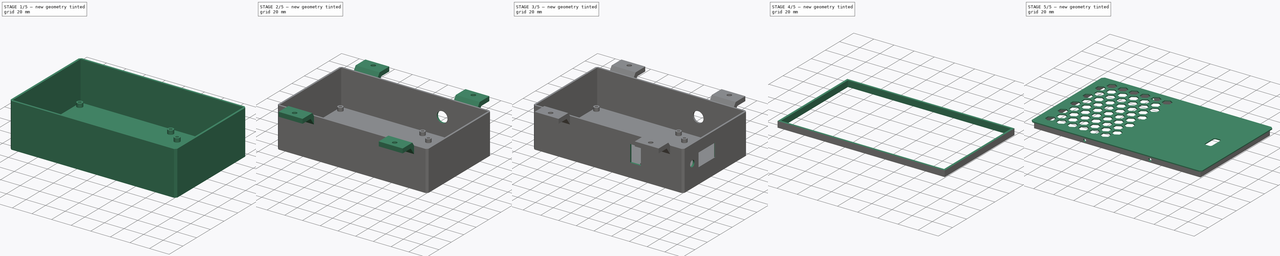
[diagram: build sequence overview — one tinted view per stage of 5, left to right]
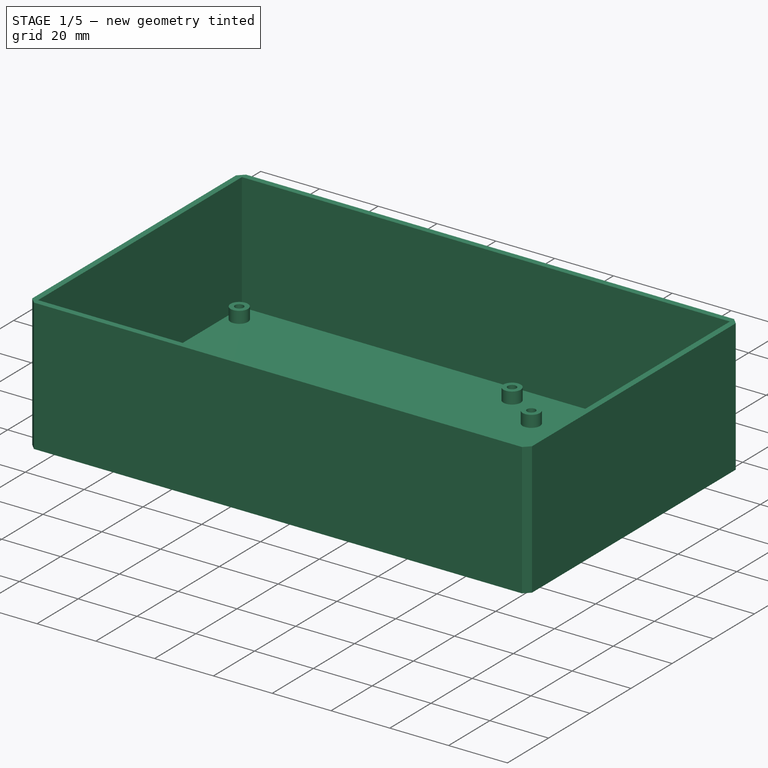
[diagram: stage 1 of 5 — iso view after this stage's code; geometry added in this stage tinted green]
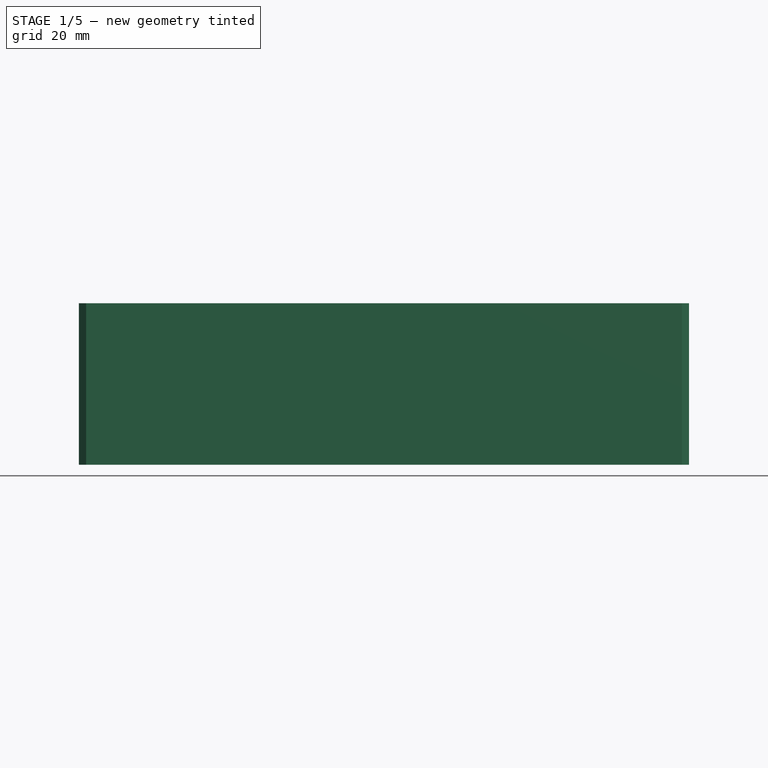
[diagram: stage 1 of 5 — front view after this stage's code; geometry added in this stage tinted green]
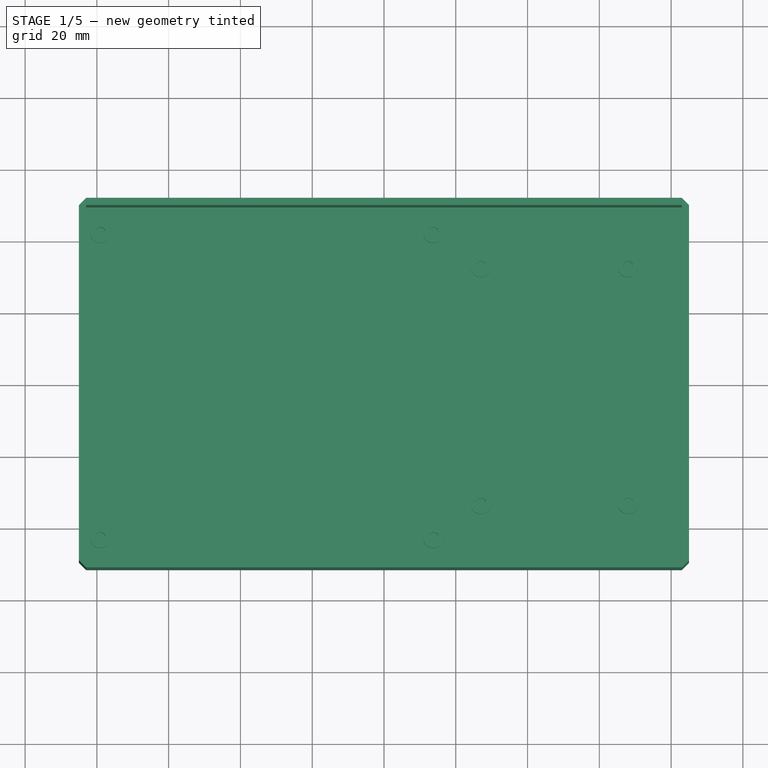
[diagram: stage 1 of 5 — top view after this stage's code; geometry added in this stage tinted green]
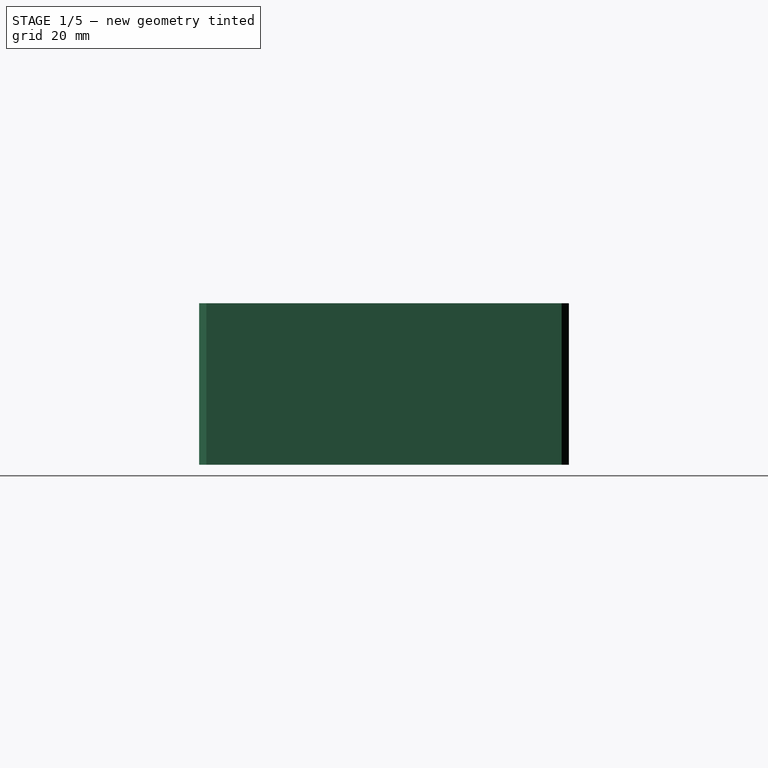
[diagram: stage 1 of 5 — right view after this stage's code; geometry added in this stage tinted green]
FCSTD DOCUMENT  (FreeCAD 1.0R39109 (Git))
Label: electronicsShell
License: All rights reserved
LicenseURL: https://en.wikipedia.org/wiki/All_rights_reserved
objects: Sketcher::SketchObject×24, PartDesign::Pocket×15, PartDesign::Pad×8, PartDesign::Body×2, PartDesign::LinearPattern×2, PartDesign::Chamfer×1, PartDesign::Hole×1, PartDesign::ShapeBinder×1, PartDesign::MultiTransform×1
note: 132 computed .brp shape members not serialized (recipe doc carries the construction recipe); baked Part::Feature solids carry a one-line shape summary decoded from their .brp

FEATURE [Sketcher::SketchObject] Sketch
  ArcFitTolerance = 1e-06
  AttachmentSupport = -> [XY_Plane]
  FullyConstrained = true
  MakeInternals = false
  MapMode = 5
  sketch-geometry (5):
    g0: LineSegment StartX=-85 StartY=-51.5 StartZ=0 EndX=85 EndY=-51.5 EndZ=0
    g1: LineSegment StartX=85 StartY=-51.5 StartZ=0 EndX=85 EndY=51.5 EndZ=0
    g2: LineSegment StartX=85 StartY=51.5 StartZ=0 EndX=-85 EndY=51.5 EndZ=0
    g3: LineSegment StartX=-85 StartY=51.5 StartZ=0 EndX=-85 EndY=-51.5 EndZ=0
    g4: GeomPoint [constr] X=0 Y=0 Z=0
  constraints (12):
    c: Coincident(g0,g1)
    c: Coincident(g1,g2)
    c: Coincident(g2,g3)
    c: Coincident(g3,g0)
    c: Horizontal(g0)
    c: Horizontal(g2)
    c: Vertical(g1)
    c: Vertical(g3)
    c: Symmetric(g2,g0,g4)
    c: Coincident(g4,g-1)
    c: DistanceY(g3,g3) = 103
    c: DistanceX(g0,g0) = 170
FEATURE [PartDesign::Pad] Pad
  Direction = (0,0,1)
  Length = 5
  Length2 = 10
  Profile = -> Sketch
  ReferenceAxis = -> Sketch [N_Axis]
  Refine = true
  Suppressed = false
  Type = 0
FEATURE [Sketcher::SketchObject] Sketch001
  ArcFitTolerance = 1e-06
  AttachmentSupport = -> [Pad]
  ExternalGeometry = -> [Pad]
  FullyConstrained = true
  MakeInternals = false
  MapMode = 5
  Placement = pos=(0,0,5) rot=(0,0,1;0rad)
  sketch-geometry (10):
    g0: LineSegment StartX=85 StartY=-51.5 StartZ=0 EndX=85 EndY=51.5 EndZ=0
    g1: LineSegment StartX=85 StartY=51.5 StartZ=0 EndX=-85 EndY=51.5 EndZ=0
    g2: LineSegment StartX=-85 StartY=51.5 StartZ=0 EndX=-85 EndY=-51.5 EndZ=0
    g3: LineSegment StartX=-85 StartY=-51.5 StartZ=0 EndX=85 EndY=-51.5 EndZ=0
    g4: GeomPoint [constr] X=0 Y=0 Z=0
    g5: LineSegment StartX=83 StartY=-49.5 StartZ=0 EndX=83 EndY=49.5 EndZ=0
    g6: LineSegment StartX=83 StartY=49.5 StartZ=0 EndX=-83 EndY=49.5 EndZ=0
    g7: LineSegment StartX=-83 StartY=49.5 StartZ=0 EndX=-83 EndY=-49.5 EndZ=0
    g8: LineSegment StartX=-83 StartY=-49.5 StartZ=0 EndX=83 EndY=-49.5 EndZ=0
    g9: GeomPoint [constr] X=0 Y=0 Z=0
  constraints (23):
    c: Coincident(g0,g1)
    c: Coincident(g1,g2)
    c: Coincident(g2,g3)
    c: Coincident(g3,g0)
    c: Vertical(g0)
    c: Vertical(g2)
    c: Horizontal(g1)
    c: Horizontal(g3)
    c: Symmetric(g2,g0,g4)
    c: Coincident(g4,g-1)
    c: Coincident(g1,g-3)
    c: Coincident(g5,g6)
    c: Coincident(g6,g7)
    c: Coincident(g7,g8)
    c: Coincident(g8,g5)
    c: Vertical(g5)
    c: Vertical(g7)
    c: Horizontal(g6)
    c: Horizontal(g8)
    c: Symmetric(g7,g5,g9)
    c: Coincident(g9,g4)
    c: Distance(g5,g0) = 2
    c: Distance(g3,g8) = 2
FEATURE [PartDesign::Pad] Pad001
  BaseFeature = -> Pad
  Direction = (0,0,1)
  Length = 40
  Length2 = 10
  Profile = -> Sketch001
  ReferenceAxis = -> Sketch001 [N_Axis]
  Refine = true
  Suppressed = false
  Type = 0
FEATURE [PartDesign::Chamfer] Chamfer
  Angle = 45
  Base = -> Pad001 [Edge5,Edge24,Edge23,Edge7]
  BaseFeature = -> Pad001
  ChamferType = 0
  FlipDirection = false
  Refine = true
  Size = 2
  Size2 = 1
  SupportTransform = false
  Suppressed = false
  UseAllEdges = false
FEATURE [Sketcher::SketchObject] Sketch002
  ArcFitTolerance = 1e-06
  AttachmentSupport = -> [Chamfer]
  ExternalGeometry = -> [Chamfer]
  FullyConstrained = true
  MakeInternals = false
  MapMode = 5
  Placement = pos=(0,0,5) rot=(0,0,1;0rad)
  sketch-geometry (12):
    g0: Circle CenterX=-79 CenterY=42.5 CenterZ=0 NormalX=0 NormalY=0 NormalZ=1 AngleXU=0 Radius=1.45
    g1: LineSegment [constr] StartX=-79 StartY=42.5 StartZ=0 EndX=-79 EndY=49.5 EndZ=0
    g2: LineSegment [constr] StartX=-79 StartY=42.5 StartZ=0 EndX=-83 EndY=42.5 EndZ=0
    g3: Circle CenterX=13.8 CenterY=-42.5 CenterZ=0 NormalX=0 NormalY=0 NormalZ=1 AngleXU=0 Radius=1.45
    g4: Circle CenterX=27 CenterY=33 CenterZ=0 NormalX=0 NormalY=0 NormalZ=1 AngleXU=0 Radius=1.45
    g5: Circle CenterX=68 CenterY=33 CenterZ=0 NormalX=0 NormalY=0 NormalZ=1 AngleXU=0 Radius=1.45
    g6: Circle CenterX=27 CenterY=-33 CenterZ=0 NormalX=0 NormalY=0 NormalZ=1 AngleXU=0 Radius=1.45
    g7: Circle CenterX=68 CenterY=-33 CenterZ=0 NormalX=0 NormalY=0 NormalZ=1 AngleXU=0 Radius=1.45
    g8: GeomPoint [constr] X=0 Y=0 Z=0
    g9: Circle CenterX=13.8 CenterY=42.5 CenterZ=0 NormalX=0 NormalY=0 NormalZ=1 AngleXU=0 Radius=1.45
    g10: Circle CenterX=-79 CenterY=-42.5 CenterZ=0 NormalX=0 NormalY=0 NormalZ=1 AngleXU=0 Radius=1.45
    g11: LineSegment [constr] StartX=-79 StartY=-42.5 StartZ=0 EndX=-79 EndY=-49.5 EndZ=0
  constraints (33):
    c: Coincident(g1,g0)
    c: Coincident(g2,g0)
    c: Horizontal(g2)
    c: Vertical(g1)
    c: Vertical(g2,g-3)
    c: Horizontal(g1,g-3)
    c: DistanceX(g2,g2) = 4
    c: Diameter(g0) = 2.9
    c: DistanceX(g0,g3) = 92.8
    c: DistanceY(g3,g0) = 85
    c: Equal(g0,g3)
    c: DistanceY(g7,g5) = 66
    c: DistanceX(g4,g5) = 41
    c: Horizontal(g6,g7)
    c: Horizontal(g5,g4)
    c: Vertical(g7,g5)
    c: Equal(g5,g4)
    c: Equal(g4,g6)
    c: Equal(g6,g7)
    c: Equal(g6,g3)
    c: Symmetric(g4,g6,g-1)
    c: Coincident(g8,g-1)
    c: DistanceX(g7,g-4) = 15
    c: Equal(g10,g9)
    c: Equal(g9,g3)
    c: Vertical(g10,g0)
    c: Horizontal(g10,g3)
    c: Vertical(g3,g9)
    c: Horizontal(g9,g0)
    c: Coincident(g11,g10)
    c: PointOnObject(g11,g-5)
    c: Vertical(g11)
    c: Equal(g11,g1)
FEATURE [PartDesign::Pocket] Pocket
  BaseFeature = -> Chamfer
  Direction = (0,0,-1)
  Length = 1
  Length2 = 5
  Profile = -> Sketch002
  ReferenceAxis = -> Sketch002 [N_Axis]
  Refine = true
  Suppressed = false
  Type = 0
FEATURE [Sketcher::SketchObject] Sketch003
  ArcFitTolerance = 1e-06
  AttachmentSupport = -> [Pocket]
  ExternalGeometry = -> [Pocket]
  FullyConstrained = true
  MakeInternals = false
  MapMode = 5
  Placement = pos=(0,0,5) rot=(0,0,1;0rad)
  sketch-geometry (16):
    g0: Circle CenterX=-79 CenterY=-42.5 CenterZ=0 NormalX=0 NormalY=0 NormalZ=1 AngleXU=0 Radius=1.45
    g1: Circle CenterX=-79 CenterY=-42.5 CenterZ=0 NormalX=0 NormalY=0 NormalZ=1 AngleXU=0 Radius=2.95
    g2: Circle CenterX=13.8 CenterY=-42.5 CenterZ=0 NormalX=0 NormalY=0 NormalZ=1 AngleXU=0 Radius=1.45
    g3: Circle CenterX=13.8 CenterY=-42.5 CenterZ=0 NormalX=0 NormalY=0 NormalZ=1 AngleXU=0 Radius=2.95
    g4: Circle CenterX=27 CenterY=-33 CenterZ=0 NormalX=0 NormalY=0 NormalZ=1 AngleXU=0 Radius=1.45
    g5: Circle CenterX=27 CenterY=-33 CenterZ=0 NormalX=0 NormalY=0 NormalZ=1 AngleXU=0 Radius=2.95
    g6: Circle CenterX=68 CenterY=-33 CenterZ=0 NormalX=0 NormalY=0 NormalZ=1 AngleXU=0 Radius=2.95
    g7: Circle CenterX=68 CenterY=33 CenterZ=0 NormalX=0 NormalY=0 NormalZ=1 AngleXU=0 Radius=1.45
    g8: Circle CenterX=68 CenterY=33 CenterZ=0 NormalX=0 NormalY=0 NormalZ=1 AngleXU=0 Radius=2.95
    g9: Circle CenterX=27 CenterY=33 CenterZ=0 NormalX=0 NormalY=0 NormalZ=1 AngleXU=0 Radius=1.45
    g10: Circle CenterX=27 CenterY=33 CenterZ=0 NormalX=0 NormalY=0 NormalZ=1 AngleXU=0 Radius=2.95
    g11: Circle CenterX=13.8 CenterY=42.5 CenterZ=0 NormalX=0 NormalY=0 NormalZ=1 AngleXU=0 Radius=1.45
    g12: Circle CenterX=13.8 CenterY=42.5 CenterZ=0 NormalX=0 NormalY=0 NormalZ=1 AngleXU=0 Radius=2.95
    g13: Circle CenterX=-79 CenterY=42.5 CenterZ=0 NormalX=0 NormalY=0 NormalZ=1 AngleXU=0 Radius=1.45
    g14: Circle CenterX=-79 CenterY=42.5 CenterZ=0 NormalX=0 NormalY=0 NormalZ=1 AngleXU=0 Radius=2.95
    g15: Circle CenterX=68 CenterY=-33 CenterZ=0 NormalX=0 NormalY=0 NormalZ=1 AngleXU=0 Radius=1.45
  constraints (32):
    c: Coincident(g0,g-10)
    c: Equal(g0,g-10)
    c: Coincident(g1,g0)
    c: Coincident(g2,g-8)
    c: Equal(g2,g-8)
    c: Coincident(g3,g2)
    c: Coincident(g4,g-7)
    c: Equal(g4,g-7)
    c: Coincident(g5,g4)
    c: Coincident(g6,g-6)
    c: Coincident(g7,g-5)
    c: Equal(g7,g-5)
    c: Coincident(g8,g7)
    c: Coincident(g9,g-4)
    c: Equal(g9,g-4)
    c: Coincident(g10,g9)
    c: Coincident(g11,g-9)
    c: Equal(g11,g-9)
    c: Coincident(g12,g11)
    c: Coincident(g13,g-3)
    c: Equal(g13,g-3)
    c: Coincident(g14,g13)
    c: Coincident(g15,g6)
    c: Equal(g15,g-6)
    c: Equal(g5,g6)
    c: Equal(g6,g8)
    c: Equal(g8,g10)
    c: Equal(g10,g12)
    c: Equal(g12,g14)
    c: Equal(g14,g1)
    c: Equal(g1,g3)
    c: Distance(g1,g0) = 1.5
FEATURE [PartDesign::Pad] Pad002
  BaseFeature = -> Pocket
  Direction = (0,0,1)
  Length = 4
  Length2 = 10
  Profile = -> Sketch003
  ReferenceAxis = -> Sketch003 [N_Axis]
  Refine = true
  Suppressed = false
  Type = 0
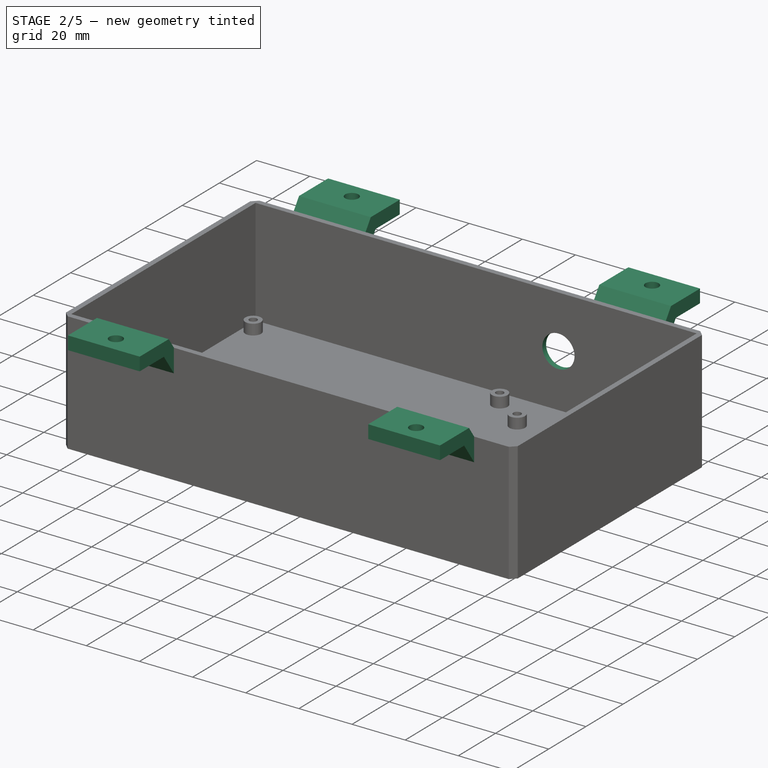
[diagram: stage 2 of 5 — iso view after this stage's code; geometry added in this stage tinted green]
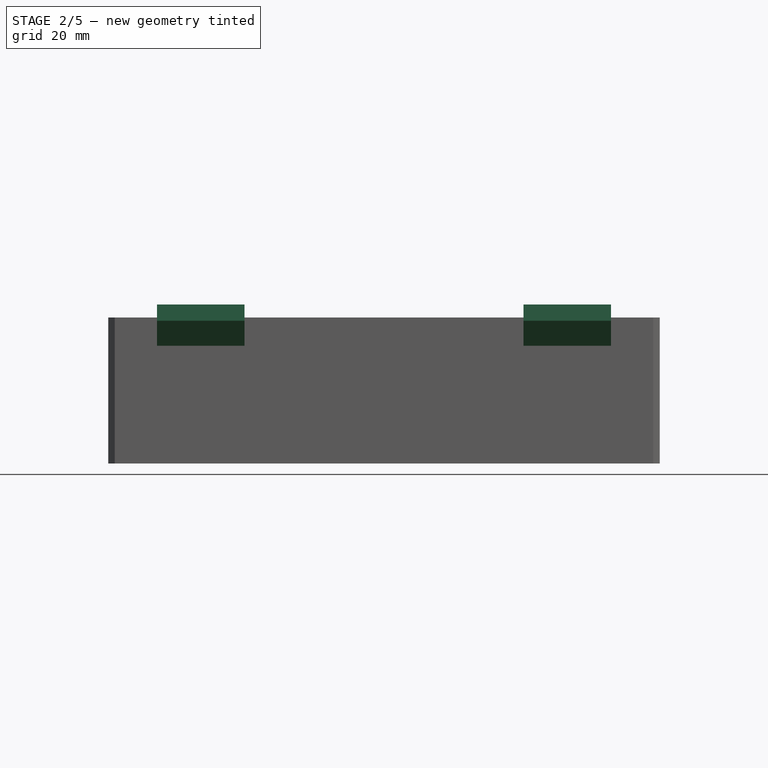
[diagram: stage 2 of 5 — front view after this stage's code; geometry added in this stage tinted green]
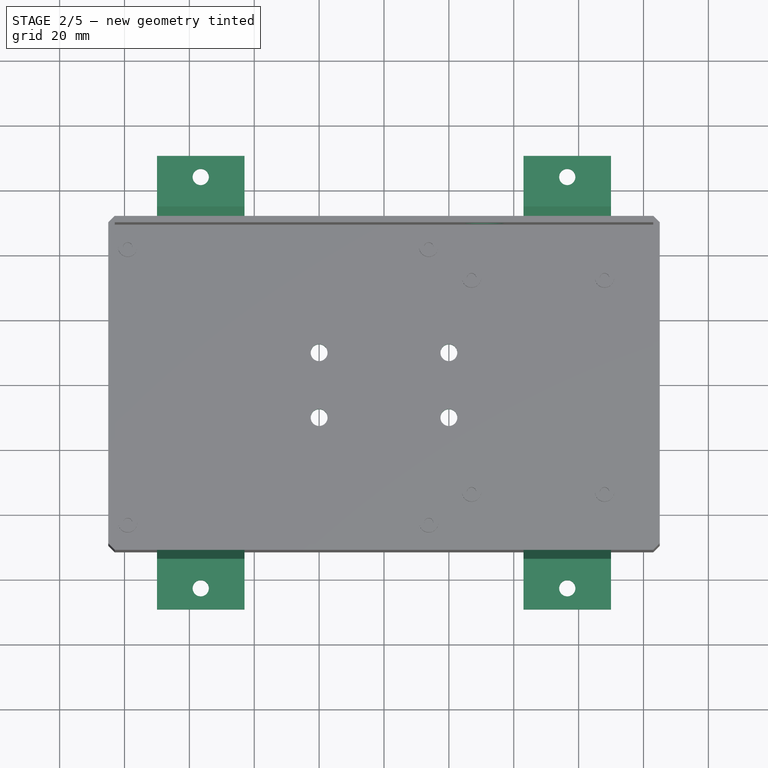
[diagram: stage 2 of 5 — top view after this stage's code; geometry added in this stage tinted green]
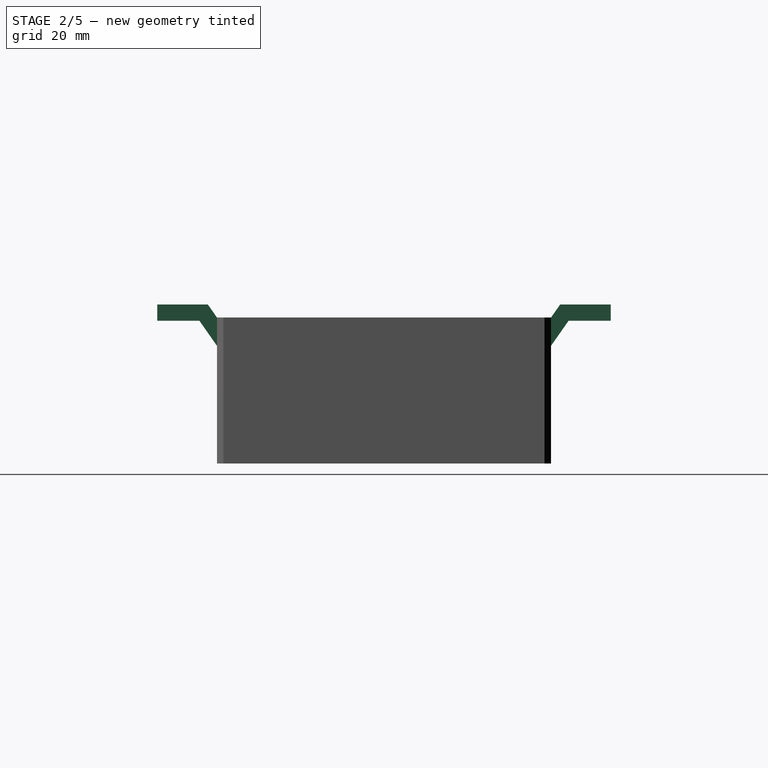
[diagram: stage 2 of 5 — right view after this stage's code; geometry added in this stage tinted green]
FEATURE [Sketcher::SketchObject] Sketch004
  ArcFitTolerance = 1e-06
  AttachmentSupport = -> [Pad002]
  FullyConstrained = true
  MakeInternals = false
  MapMode = 5
  Placement = pos=(0,0,5) rot=(0,0,1;0rad)
  sketch-geometry (4):
    g0: Circle CenterX=-20 CenterY=10 CenterZ=0 NormalX=0 NormalY=0 NormalZ=1 AngleXU=0 Radius=2.6
    g1: Circle CenterX=20 CenterY=10 CenterZ=0 NormalX=0 NormalY=0 NormalZ=1 AngleXU=0 Radius=2.6
    g2: Circle CenterX=-20 CenterY=-10 CenterZ=0 NormalX=0 NormalY=0 NormalZ=1 AngleXU=0 Radius=2.6
    g3: Circle CenterX=20 CenterY=-10 CenterZ=0 NormalX=0 NormalY=0 NormalZ=1 AngleXU=0 Radius=2.6
  constraints (10):
    c: Equal(g3,g2)
    c: Equal(g2,g0)
    c: Equal(g0,g1)
    c: Symmetric(g2,g1,g-1)
    c: Symmetric(g3,g0,g-1)
    c: Vertical(g2,g0)
    c: Horizontal(g1,g0)
    c: DistanceX(g0,g1) = 40
    c: DistanceY(g2,g0) = 20
    c: Diameter(g2) = 5.2
FEATURE [PartDesign::Pocket] Pocket001
  BaseFeature = -> Pad002
  Direction = (0,0,-1)
  Length = 0
  Length2 = 5
  Profile = -> Sketch004
  ReferenceAxis = -> Sketch004 [N_Axis]
  Refine = true
  Suppressed = false
  Type = 3
  UpToFace = -> Pad002 [Face17]
FEATURE [Sketcher::SketchObject] Sketch005
  ArcFitTolerance = 1e-06
  AttachmentSupport = -> [YZ_Plane]
  ExternalGeometry = -> [Pocket001]
  FullyConstrained = true
  MakeInternals = false
  MapMode = 5
  Placement = pos=(0,0,0) rot=(0.57735,0.57735,0.57735;2.0944rad)
  sketch-geometry (12):
    g0: LineSegment StartX=-51.5 StartY=45 StartZ=0 EndX=-51.5 EndY=36.2828 EndZ=0
    g1: LineSegment StartX=-51.5 StartY=36.2828 StartZ=0 EndX=-56.9037 EndY=44 EndZ=0
    g2: LineSegment StartX=-56.9037 StartY=44 StartZ=0 EndX=-69.9037 EndY=44 EndZ=0
    g3: LineSegment StartX=-69.9037 StartY=44 StartZ=0 EndX=-69.9037 EndY=49 EndZ=0
    g4: LineSegment StartX=-69.9037 StartY=49 StartZ=0 EndX=-54.3008 EndY=49 EndZ=0
    g5: LineSegment StartX=-54.3008 StartY=49 StartZ=0 EndX=-51.5 EndY=45 EndZ=0
    g6: LineSegment StartX=51.5 StartY=45 StartZ=0 EndX=51.5 EndY=36.2828 EndZ=0
    g7: LineSegment StartX=51.5 StartY=36.2828 StartZ=0 EndX=56.9037 EndY=44 EndZ=0
    g8: LineSegment StartX=56.9037 StartY=44 StartZ=0 EndX=69.9037 EndY=44 EndZ=0
    g9: LineSegment StartX=69.9037 StartY=44 StartZ=0 EndX=69.9037 EndY=49 EndZ=0
    g10: LineSegment StartX=69.9037 StartY=49 StartZ=0 EndX=54.3008 EndY=49 EndZ=0
    g11: LineSegment StartX=54.3008 StartY=49 StartZ=0 EndX=51.5 EndY=45 EndZ=0
  constraints (34):
    c: Vertical(g0)
    c: Coincident(g0,g1)
    c: Coincident(g1,g2)
    c: Horizontal(g2)
    c: Coincident(g2,g3)
    c: Coincident(g3,g4)
    c: Horizontal(g4)
    c: Coincident(g4,g5)
    c: Parallel(g1,g5)
    c: Vertical(g3)
    c: DistanceY(g3,g3) = 5
    c: Vertical(g6)
    c: Coincident(g6,g7)
    c: Coincident(g7,g8)
    c: Horizontal(g8)
    c: Coincident(g8,g9)
    c: Coincident(g9,g10)
    c: Horizontal(g10)
    c: Coincident(g10,g11)
    c: Distance(g5,g1) = 5
    c: DistanceY(g0,g4) = 4
    c: DistanceX(g2,g2) = 13
    c: Angle(g0,g1) = 0.610865
    c: Parallel(g7,g11)
    c: Equal(g8,g2)
    c: Equal(g10,g4)
    c: Vertical(g9)
    c: Horizontal(g10,g4)
    c: Horizontal(g7,g1)
    c: Horizontal(g6,g0)
    c: Coincident(g11,g6)
    c: Coincident(g6,g-4)
    c: Coincident(g5,g0)
    c: Coincident(g0,g-3)
FEATURE [PartDesign::Pad] Pad003
  BaseFeature = -> Pocket001
  Direction = (1,0,0)
  Length = 140
  Length2 = 23
  Midplane = true
  Profile = -> Sketch005
  ReferenceAxis = -> Sketch005 [N_Axis]
  Refine = true
  Suppressed = false
  Type = 0
FEATURE [Sketcher::SketchObject] Sketch006
  ArcFitTolerance = 1e-06
  AttachmentSupport = -> [YZ_Plane]
  ExternalGeometry = -> [Pad003]
  FullyConstrained = true
  MakeInternals = false
  MapMode = 5
  Placement = pos=(0,0,0) rot=(0.57735,0.57735,0.57735;2.0944rad)
  sketch-geometry (12):
    g0: LineSegment StartX=-51.5 StartY=45 StartZ=0 EndX=-54.3008 EndY=49 EndZ=0
    g1: LineSegment StartX=-54.3008 StartY=49 StartZ=0 EndX=-69.9037 EndY=49 EndZ=0
    g2: LineSegment StartX=-69.9037 StartY=49 StartZ=0 EndX=-69.9037 EndY=44 EndZ=0
    g3: LineSegment StartX=-69.9037 StartY=44 StartZ=0 EndX=-56.9037 EndY=44 EndZ=0
    g4: LineSegment StartX=-56.9037 StartY=44 StartZ=0 EndX=-51.5 EndY=36.2828 EndZ=0
    g5: LineSegment StartX=-51.5 StartY=36.2828 StartZ=0 EndX=-51.5 EndY=45 EndZ=0
    g6: LineSegment StartX=51.5 StartY=36.2828 StartZ=0 EndX=51.5 EndY=45 EndZ=0
    g7: LineSegment StartX=51.5 StartY=45 StartZ=0 EndX=54.3008 EndY=49 EndZ=0
    g8: LineSegment StartX=54.3008 StartY=49 StartZ=0 EndX=69.9037 EndY=49 EndZ=0
    g9: LineSegment StartX=69.9037 StartY=49 StartZ=0 EndX=69.9037 EndY=44 EndZ=0
    g10: LineSegment StartX=69.9037 StartY=44 StartZ=0 EndX=56.9037 EndY=44 EndZ=0
    g11: LineSegment StartX=56.9037 StartY=44 StartZ=0 EndX=51.5 EndY=36.2828 EndZ=0
  constraints (24):
    c: Coincident(g-4,g0)
    c: Coincident(g0,g-5)
    c: Coincident(g0,g1)
    c: Coincident(g1,g-6)
    c: Coincident(g1,g2)
    c: Coincident(g2,g-7)
    c: Coincident(g2,g3)
    c: Coincident(g3,g-8)
    c: Coincident(g3,g4)
    c: Coincident(g4,g-8)
    c: Coincident(g4,g5)
    c: Coincident(g5,g0)
    c: Coincident(g-13,g6)
    c: Coincident(g6,g-13)
    c: Coincident(g6,g7)
    c: Coincident(g7,g-11)
    c: Coincident(g7,g8)
    c: Coincident(g8,g-14)
    c: Coincident(g8,g9)
    c: Coincident(g9,g-14)
    c: Coincident(g9,g10)
    c: Coincident(g10,g-12)
    c: Coincident(g10,g11)
    c: Coincident(g11,g6)
FEATURE [PartDesign::Pocket] Pocket002
  BaseFeature = -> Pad003
  Direction = (-1,0,0)
  Length = 86
  Length2 = 5
  Midplane = true
  Profile = -> Sketch006
  ReferenceAxis = -> Sketch006 [N_Axis]
  Refine = true
  Suppressed = false
  Type = 0
FEATURE [Sketcher::SketchObject] Sketch007
  ArcFitTolerance = 1e-06
  AttachmentSupport = -> [Pocket002]
  ExternalGeometry = -> [Pocket002]
  FullyConstrained = true
  MakeInternals = false
  MapMode = 5
  Placement = pos=(0,49.5,0) rot=(1,0,0;1.5708rad)
  sketch-geometry (1):
    g0: Circle CenterX=31 CenterY=25 CenterZ=0 NormalX=0 NormalY=0 NormalZ=1 AngleXU=0 Radius=6.05
  constraints (3):
    c: DistanceY(g-3,g0) = 20
    c: DistanceX(g0,g-3) = 52
    c: Diameter(g0) = 12.1
FEATURE [PartDesign::Pocket] Pocket003
  BaseFeature = -> Pocket002
  Direction = (0,1,-2e-16)
  Length = 5
  Length2 = 5
  Profile = -> Sketch007
  ReferenceAxis = -> Sketch007 [N_Axis]
  Refine = true
  Suppressed = false
  Type = 2
FEATURE [Sketcher::SketchObject] Sketch008
  ArcFitTolerance = 1e-06
  AttachmentSupport = -> [Pocket003]
  ExternalGeometry = -> [Pocket003]
  FullyConstrained = true
  MakeInternals = false
  MapMode = 5
  Placement = pos=(0,0,44) rot=(1,0,0;3.14159rad)
  sketch-geometry (4):
    g0: Circle CenterX=-56.5 CenterY=63.4037 CenterZ=0 NormalX=0 NormalY=0 NormalZ=1 AngleXU=0 Radius=2
    g1: Circle CenterX=56.5 CenterY=63.4037 CenterZ=0 NormalX=0 NormalY=0 NormalZ=1 AngleXU=0 Radius=2
    g2: Circle CenterX=56.5 CenterY=-63.4037 CenterZ=0 NormalX=0 NormalY=0 NormalZ=1 AngleXU=0 Radius=2
    g3: Circle CenterX=-56.5 CenterY=-63.4037 CenterZ=0 NormalX=0 NormalY=0 NormalZ=1 AngleXU=0 Radius=2
  constraints (8):
    c: Symmetric(g-9,g-10,g3)
    c: Symmetric(g-4,g-3,g0)
    c: Symmetric(g-5,g-6,g1)
    c: Symmetric(g-8,g-7,g2)
    c: Equal(g3,g2)
    c: Equal(g2,g1)
    c: Equal(g1,g0)
    c: Diameter(g3) = 4
FEATURE [PartDesign::Hole] Hole
  BaseFeature = -> Pocket003
  CustomThreadClearance = 0
  Depth = 25
  DepthType = 0
  Diameter = 5
  DrillForDepth = false
  DrillPoint = 1
  DrillPointAngle = 118
  HoleCutCountersinkAngle = 80
  HoleCutCustomValues = false
  HoleCutDepth = 0
  HoleCutDiameter = 7
  HoleCutType = 2
  ModelThread = false
  Profile = -> Sketch008
  Refine = true
  Suppressed = false
  Tapered = false
  TaperedAngle = 90
  ThreadClass = 0
  ThreadDepth = 25
  ThreadDepthType = 0
  ThreadDirection = 0
  ThreadFit = 0
  ThreadSize = 12
  ThreadType = 1
  Threaded = false
  UseCustomThreadClearance = false
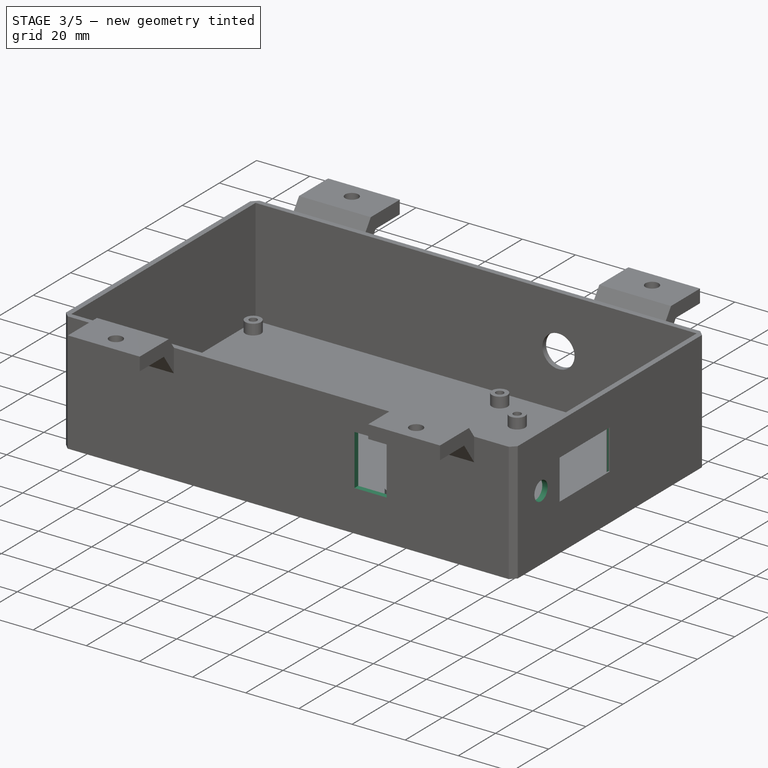
[diagram: stage 3 of 5 — iso view after this stage's code; geometry added in this stage tinted green]
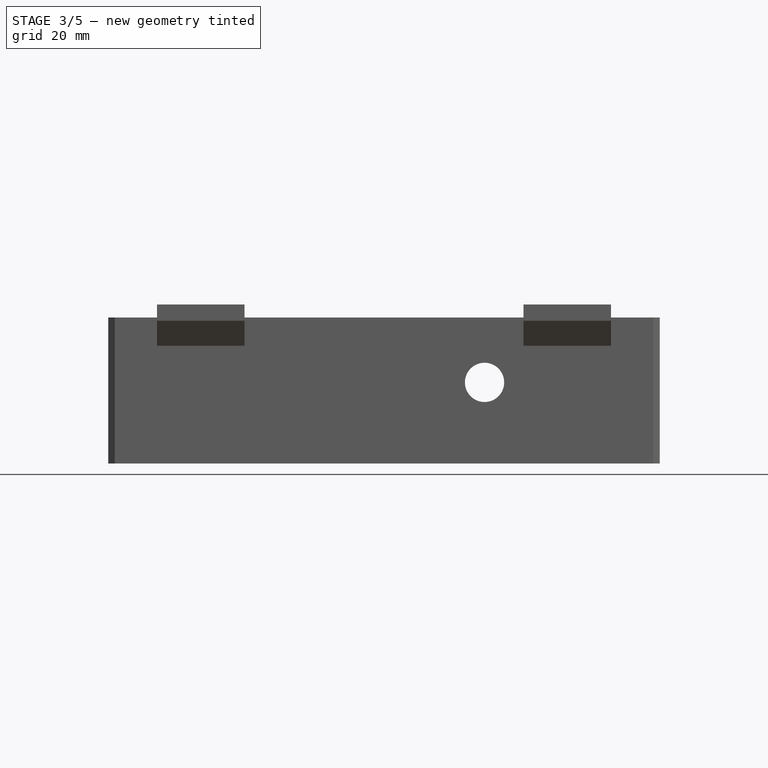
[diagram: stage 3 of 5 — front view after this stage's code; geometry added in this stage tinted green]
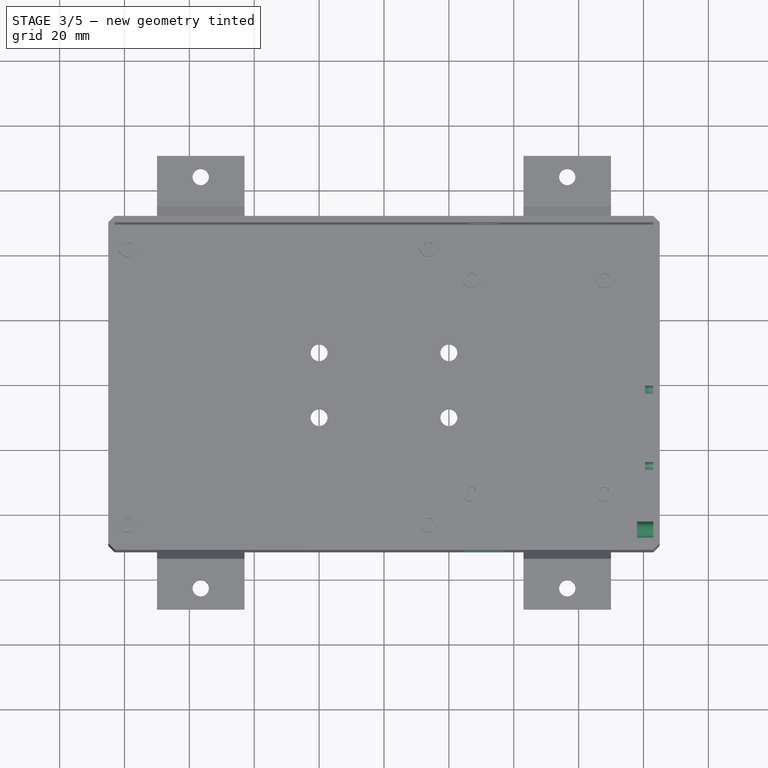
[diagram: stage 3 of 5 — top view after this stage's code; geometry added in this stage tinted green]
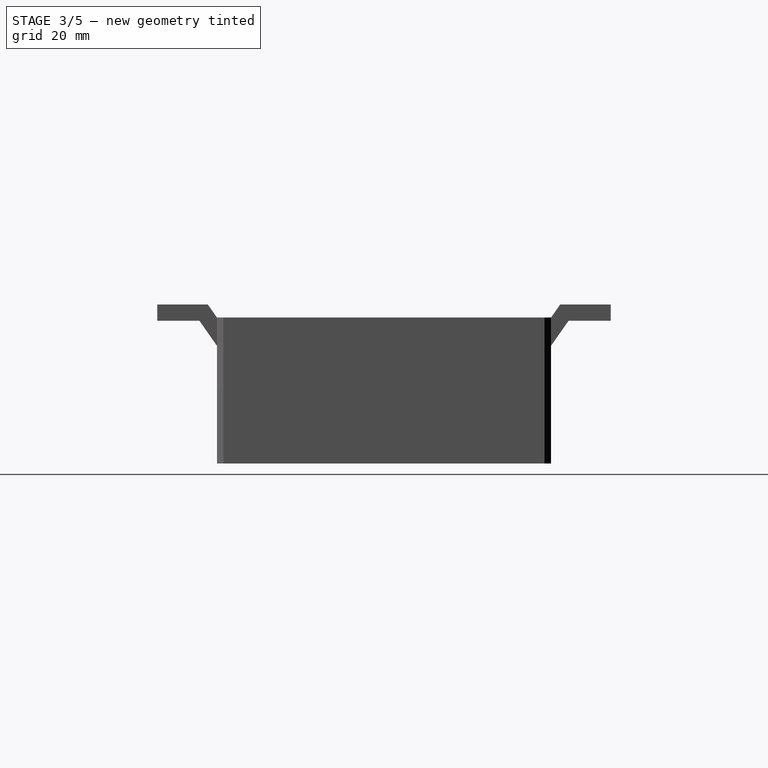
[diagram: stage 3 of 5 — right view after this stage's code; geometry added in this stage tinted green]
FEATURE [Sketcher::SketchObject] Sketch015
  ArcFitTolerance = 1e-06
  AttachmentSupport = -> [Hole]
  ExternalGeometry = -> [Hole]
  FullyConstrained = true
  MakeInternals = false
  MapMode = 5
  Placement = pos=(0,-49.5,0) rot=(0,0.707107,0.707107;3.14159rad)
  sketch-geometry (5):
    g0: LineSegment StartX=-37.05 StartY=15.45 StartZ=0 EndX=-24.95 EndY=15.45 EndZ=0
    g1: LineSegment StartX=-24.95 StartY=15.45 StartZ=0 EndX=-24.95 EndY=34.55 EndZ=0
    g2: LineSegment StartX=-24.95 StartY=34.55 StartZ=0 EndX=-37.05 EndY=34.55 EndZ=0
    g3: LineSegment StartX=-37.05 StartY=34.55 StartZ=0 EndX=-37.05 EndY=15.45 EndZ=0
    g4: GeomPoint [constr] X=-31 Y=25 Z=0
  constraints (12):
    c: Coincident(g0,g1)
    c: Coincident(g1,g2)
    c: Coincident(g2,g3)
    c: Coincident(g3,g0)
    c: Horizontal(g0)
    c: Horizontal(g2)
    c: Vertical(g1)
    c: Vertical(g3)
    c: Symmetric(g2,g0,g4)
    c: Coincident(g4,g-3)
    c: DistanceX(g2,g2) = 12.1
    c: DistanceY(g1,g1) = 19.1
FEATURE [PartDesign::Pocket] Pocket007
  BaseFeature = -> Hole
  Direction = (0,-1,2e-16)
  Length = 5
  Length2 = 5
  Profile = -> Sketch015
  ReferenceAxis = -> Sketch015 [N_Axis]
  Refine = true
  Suppressed = false
  Type = 2
FEATURE [Sketcher::SketchObject] Sketch016
  ArcFitTolerance = 1e-06
  AttachmentSupport = -> [Pocket007]
  ExternalGeometry = -> [Pocket007]
  FullyConstrained = true
  MakeInternals = false
  MapMode = 5
  Placement = pos=(83,0,0) rot=(0.57735,-0.57735,-0.57735;2.0944rad)
  sketch-geometry (8):
    g0: LineSegment StartX=0 StartY=32.5 StartZ=0 EndX=0 EndY=17.5 EndZ=0
    g1: LineSegment StartX=0 StartY=17.5 StartZ=0 EndX=27 EndY=17.5 EndZ=0
    g2: LineSegment StartX=27 StartY=17.5 StartZ=0 EndX=27 EndY=32.5 EndZ=0
    g3: LineSegment StartX=27 StartY=32.5 StartZ=0 EndX=0 EndY=32.5 EndZ=0
    g4: GeomPoint X=0 Y=25 Z=0
    g5: LineSegment [constr] StartX=0 StartY=45 StartZ=0 EndX=0 EndY=5 EndZ=0
    g6: GeomPoint [constr] X=0 Y=25 Z=0
    g7: Circle CenterX=37 CenterY=25 CenterZ=0 NormalX=0 NormalY=0 NormalZ=1 AngleXU=0 Radius=3.55
  constraints (20):
    c: Coincident(g0,g1)
    c: Coincident(g1,g2)
    c: Coincident(g2,g3)
    c: Coincident(g3,g0)
    c: Vertical(g0)
    c: Vertical(g2)
    c: Horizontal(g1)
    c: Horizontal(g3)
    c: DistanceY(g0,g0) = 15
    c: DistanceX(g3,g3) = 27
    c: Symmetric(g0,g0,g4)
    c: PointOnObject(g5,g-3)
    c: PointOnObject(g5,g-4)
    c: Vertical(g5)
    c: Symmetric(g5,g5,g6)
    c: Coincident(g6,g4)
    c: PointOnObject(g4,g-2)
    c: Diameter(g7) = 7.1
    c: Horizontal(g7,g4)
    c: Distance(g7,g2) = 10
FEATURE [PartDesign::Pocket] Pocket008
  BaseFeature = -> Pocket007
  Direction = (1,0,0)
  Length = 5
  Length2 = 5
  Profile = -> Sketch016
  ReferenceAxis = -> Sketch016 [N_Axis]
  Refine = true
  Suppressed = false
  Type = 2
FEATURE [Sketcher::SketchObject] Sketch017
  ArcFitTolerance = 1e-06
  AttachmentSupport = -> [Pocket008]
  ExternalGeometry = -> [Pocket008]
  FullyConstrained = true
  MakeInternals = false
  MapMode = 5
  Placement = pos=(83,0,0) rot=(0.57735,-0.57735,-0.57735;2.0944rad)
  sketch-geometry (8):
    g0: LineSegment StartX=27 StartY=32.5 StartZ=0 EndX=27 EndY=37.5 EndZ=0
    g1: LineSegment StartX=27 StartY=37.5 StartZ=0 EndX=0 EndY=37.5 EndZ=0
    g2: LineSegment StartX=0 StartY=37.5 StartZ=0 EndX=0 EndY=32.5 EndZ=0
    g3: LineSegment StartX=0 StartY=32.5 StartZ=0 EndX=27 EndY=32.5 EndZ=0
    g4: LineSegment StartX=27 StartY=17.5 StartZ=0 EndX=0 EndY=17.5 EndZ=0
    g5: LineSegment StartX=0 StartY=17.5 StartZ=0 EndX=0 EndY=8.5 EndZ=0
    g6: LineSegment StartX=0 StartY=8.5 StartZ=0 EndX=27 EndY=8.5 EndZ=0
    g7: LineSegment StartX=27 StartY=8.5 StartZ=0 EndX=27 EndY=17.5 EndZ=0
  constraints (22):
    c: Coincident(g0,g1)
    c: Coincident(g1,g2)
    c: Coincident(g2,g3)
    c: Coincident(g3,g0)
    c: Vertical(g0)
    c: Vertical(g2)
    c: Horizontal(g1)
    c: Horizontal(g3)
    c: Coincident(g0,g-4)
    c: PointOnObject(g1,g-2)
    c: Coincident(g4,g5)
    c: Coincident(g5,g6)
    c: Coincident(g6,g7)
    c: Coincident(g7,g4)
    c: Horizontal(g4)
    c: Horizontal(g6)
    c: Vertical(g5)
    c: Vertical(g7)
    c: Coincident(g4,g-3)
    c: PointOnObject(g5,g-2)
    c: DistanceY(g0,g0) = 5
    c: DistanceY(g6,g0) = 29
FEATURE [PartDesign::Pocket] Pocket009
  BaseFeature = -> Pocket008
  Direction = (1,0,0)
  Length = 1.5
  Length2 = 5
  Profile = -> Sketch017
  ReferenceAxis = -> Sketch017 [N_Axis]
  Refine = true
  Suppressed = false
  Type = 0
FEATURE [Sketcher::SketchObject] Sketch019
  ArcFitTolerance = 1e-06
  AttachmentSupport = -> [Pocket009]
  ExternalGeometry = -> [Pocket009]
  FullyConstrained = true
  MakeInternals = false
  MapMode = 5
  Placement = pos=(83,0,0) rot=(0.57735,-0.57735,-0.57735;2.0944rad)
  sketch-geometry (8):
    g0: LineSegment StartX=0 StartY=8.5 StartZ=0 EndX=0 EndY=37.5 EndZ=0
    g1: LineSegment StartX=0 StartY=37.5 StartZ=0 EndX=-1 EndY=37.5 EndZ=0
    g2: LineSegment StartX=-1 StartY=37.5 StartZ=0 EndX=-1 EndY=8.5 EndZ=0
    g3: LineSegment StartX=-1 StartY=8.5 StartZ=0 EndX=0 EndY=8.5 EndZ=0
    g4: LineSegment StartX=27 StartY=37.5 StartZ=0 EndX=27 EndY=8.5 EndZ=0
    g5: LineSegment StartX=27 StartY=8.5 StartZ=0 EndX=28 EndY=8.5 EndZ=0
    g6: LineSegment StartX=28 StartY=8.5 StartZ=0 EndX=28 EndY=37.5 EndZ=0
    g7: LineSegment StartX=28 StartY=37.5 StartZ=0 EndX=27 EndY=37.5 EndZ=0
  constraints (22):
    c: Coincident(g0,g1)
    c: Coincident(g1,g2)
    c: Coincident(g2,g3)
    c: Coincident(g3,g0)
    c: Vertical(g0)
    c: Vertical(g2)
    c: Horizontal(g1)
    c: Horizontal(g3)
    c: Coincident(g0,g-4)
    c: Coincident(g4,g5)
    c: Coincident(g5,g6)
    c: Coincident(g6,g7)
    c: Coincident(g7,g4)
    c: Vertical(g4)
    c: Vertical(g6)
    c: Horizontal(g5)
    c: Horizontal(g7)
    c: Coincident(g4,g-3)
    c: Equal(g1,g7)
    c: Horizontal(g0,g4)
    c: Horizontal(g4,g0)
    c: DistanceX(g1,g1) = 1
FEATURE [PartDesign::Pocket] Pocket011
  BaseFeature = -> Pocket009
  Direction = (1,0,0)
  Length = 1
  Length2 = 5
  Profile = -> Sketch019
  ReferenceAxis = -> Sketch019 [N_Axis]
  Refine = true
  Suppressed = false
  Type = 0
FEATURE [Sketcher::SketchObject] Sketch020
  ArcFitTolerance = 1e-06
  AttachmentSupport = -> [Pocket011]
  ExternalGeometry = -> [Pocket011]
  FullyConstrained = true
  MakeInternals = false
  MapMode = 5
  Placement = pos=(83,0,0) rot=(0.57735,-0.57735,-0.57735;2.0944rad)
  sketch-geometry (2):
    g0: Circle CenterX=45 CenterY=30 CenterZ=0 NormalX=0 NormalY=0 NormalZ=1 AngleXU=0 Radius=1.45
    g1: Circle CenterX=45 CenterY=30 CenterZ=0 NormalX=0 NormalY=0 NormalZ=1 AngleXU=0 Radius=2.45
  constraints (5):
    c: Coincident(g1,g0)
    c: Diameter(g0) = 2.9
    c: Distance(g0,g1) = 1
    c: DistanceX(g-3,g0) = 8
    c: DistanceY(g-3,g0) = 5
FEATURE [PartDesign::Pad] Pad007
  BaseFeature = -> Pocket011
  Direction = (-1,0,0)
  Length = 5
  Length2 = 10
  Profile = -> Sketch020
  ReferenceAxis = -> Sketch020 [N_Axis]
  Refine = true
  Suppressed = false
  Type = 0
FEATURE [Sketcher::SketchObject] Sketch021
  ArcFitTolerance = 1e-06
  AttachmentSupport = -> [Pad007]
  ExternalGeometry = -> [Pad007]
  FullyConstrained = true
  MakeInternals = false
  MapMode = 5
  Placement = pos=(84.5,0,0) rot=(0.57735,-0.57735,-0.57735;2.0944rad)
  sketch-geometry (5):
    g0: Circle CenterX=1.75 CenterY=11.7 CenterZ=0 NormalX=0 NormalY=0 NormalZ=1 AngleXU=0 Radius=0.975
    g1: Circle CenterX=25.25 CenterY=11.7 CenterZ=0 NormalX=0 NormalY=0 NormalZ=1 AngleXU=0 Radius=0.975
    g2: Circle CenterX=1.75 CenterY=35.5 CenterZ=0 NormalX=0 NormalY=0 NormalZ=1 AngleXU=0 Radius=0.975
    g3: Circle CenterX=25.25 CenterY=35.5 CenterZ=0 NormalX=0 NormalY=0 NormalZ=1 AngleXU=0 Radius=0.975
    g4: LineSegment [constr] StartX=13.5 StartY=37.5 StartZ=0 EndX=13.5 EndY=35.5 EndZ=0
  constraints (14):
    c: DistanceY(g1,g3) = 23.8
    c: DistanceX(g0,g1) = 23.5
    c: Equal(g1,g3)
    c: Equal(g3,g2)
    c: Equal(g2,g0)
    c: Diameter(g1) = 1.95
    c: Horizontal(g2,g3)
    c: Vertical(g0,g2)
    c: Vertical(g3,g1)
    c: Horizontal(g1,g0)
    c: Symmetric(g-3,g-3,g4)
    c: Vertical(g4)
    c: Symmetric(g2,g3,g4)
    c: Distance(g2,g-4) = 3
FEATURE [PartDesign::Pad] Pad008
  BaseFeature = -> Pad007
  Direction = (-1,0,0)
  Length = 4
  Length2 = 10
  Profile = -> Sketch021
  ReferenceAxis = -> Sketch021 [N_Axis]
  Refine = true
  Suppressed = false
  Type = 0
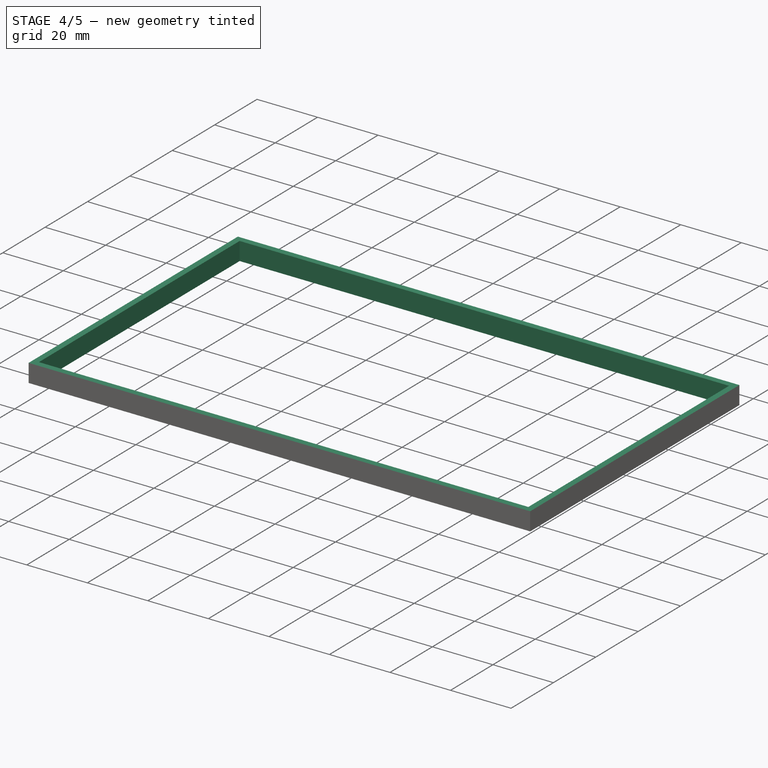
[diagram: stage 4 of 5 — iso view after this stage's code; geometry added in this stage tinted green]
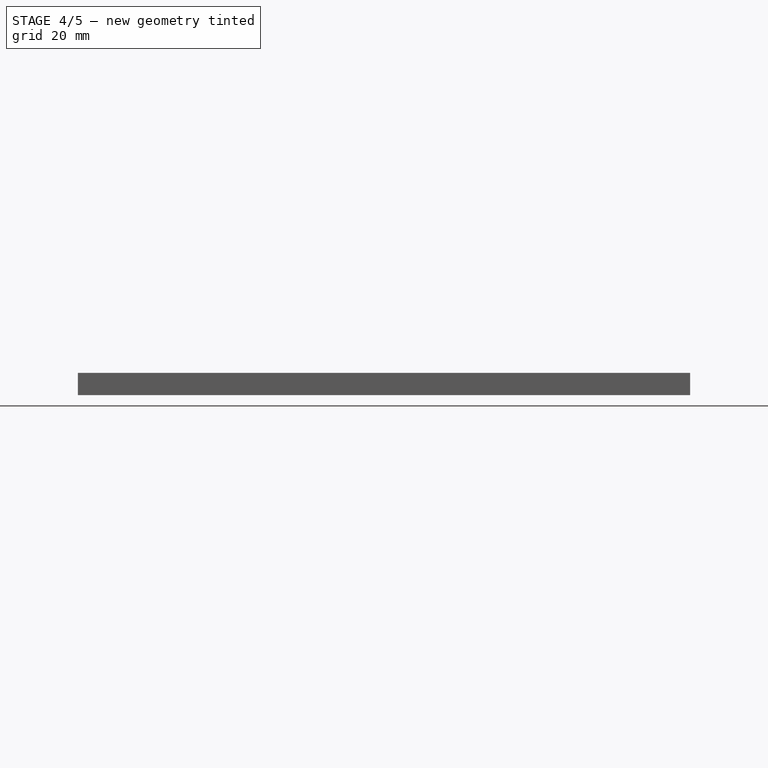
[diagram: stage 4 of 5 — front view after this stage's code; geometry added in this stage tinted green]
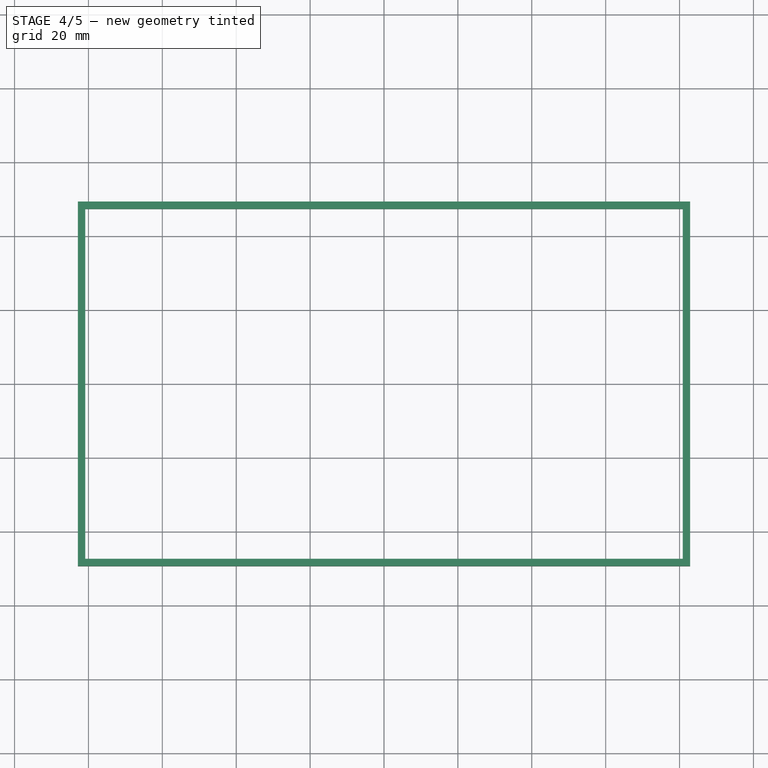
[diagram: stage 4 of 5 — top view after this stage's code; geometry added in this stage tinted green]
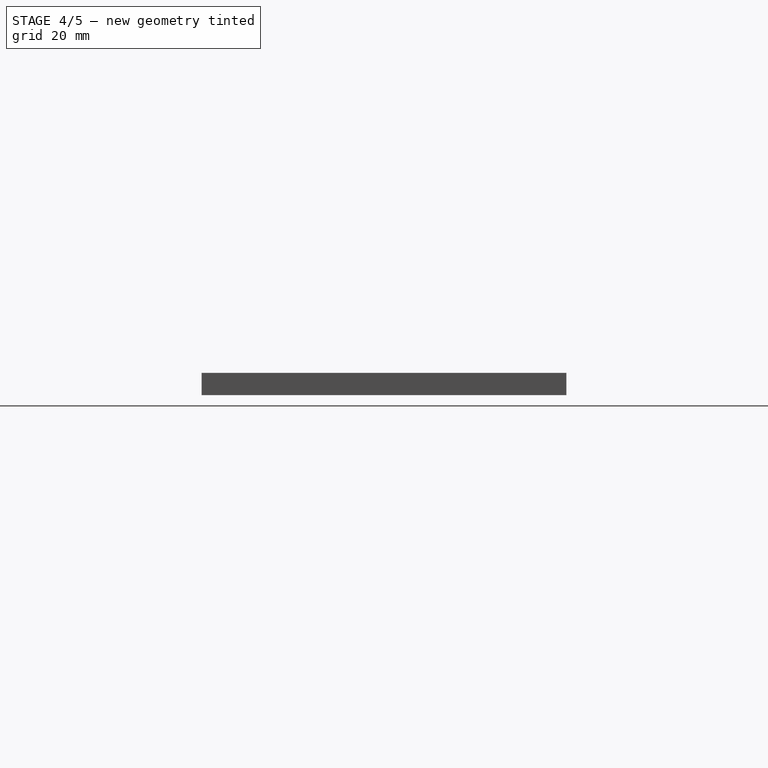
[diagram: stage 4 of 5 — right view after this stage's code; geometry added in this stage tinted green]
FEATURE [Sketcher::SketchObject] Sketch022
  ArcFitTolerance = 1e-06
  AttachmentSupport = -> [Pad008]
  ExternalGeometry = -> [Pad008]
  FullyConstrained = true
  MakeInternals = false
  MapMode = 5
  Placement = pos=(0,51.5,0) rot=(0,0.707107,0.707107;3.14159rad)
  sketch-geometry (2):
    g0: Circle CenterX=-32.5 CenterY=41.45 CenterZ=0 NormalX=0 NormalY=0 NormalZ=1 AngleXU=0 Radius=3.05
    g1: Circle CenterX=32.5 CenterY=41.45 CenterZ=0 NormalX=0 NormalY=0 NormalZ=1 AngleXU=0 Radius=3.05
  constraints (5):
    c: Symmetric(g0,g1,g-2)
    c: DistanceX(g0,g1) = 65
    c: Diameter(g1) = 6.1
    c: Equal(g0,g1)
    c: Distance(g0,g-3) = 0.5
FEATURE [PartDesign::Pocket] Pocket012
  BaseFeature = -> Pad008
  Direction = (0,-1,2e-16)
  Length = 1
  Length2 = 5
  Profile = -> Sketch022
  ReferenceAxis = -> Sketch022 [N_Axis]
  Refine = true
  Suppressed = false
  Type = 0
FEATURE [Sketcher::SketchObject] Sketch023
  ArcFitTolerance = 1e-06
  AttachmentSupport = -> [Pocket012]
  ExternalGeometry = -> [Pocket012]
  FullyConstrained = true
  MakeInternals = false
  MapMode = 5
  Placement = pos=(0,-51.5,0) rot=(1,0,0;1.5708rad)
  sketch-geometry (2):
    g0: Circle CenterX=-32.5 CenterY=41.45 CenterZ=0 NormalX=0 NormalY=0 NormalZ=1 AngleXU=0 Radius=3.05
    g1: Circle CenterX=32.5 CenterY=41.45 CenterZ=0 NormalX=0 NormalY=0 NormalZ=1 AngleXU=0 Radius=3.05
  constraints (4):
    c: Coincident(g0,g-4)
    c: Equal(g0,g-4)
    c: Coincident(g1,g-3)
    c: Equal(g1,g-3)
FEATURE [PartDesign::Pocket] Pocket013
  BaseFeature = -> Pocket012
  Direction = (0,1,-2e-16)
  Length = 1
  Length2 = 5
  Profile = -> Sketch023
  ReferenceAxis = -> Sketch023 [N_Axis]
  Refine = true
  Suppressed = false
  Type = 0
FEATURE [Sketcher::SketchObject] Sketch024
  ArcFitTolerance = 1e-06
  AttachmentSupport = -> [Pocket013]
  ExternalGeometry = -> [Pocket013]
  FullyConstrained = true
  MakeInternals = false
  MapMode = 5
  Placement = pos=(0,-50.5,0) rot=(1,0,0;1.5708rad)
  sketch-geometry (2):
    g0: Circle CenterX=-32.5 CenterY=41.45 CenterZ=0 NormalX=0 NormalY=0 NormalZ=1 AngleXU=0 Radius=1.6
    g1: Circle CenterX=32.5 CenterY=41.45 CenterZ=0 NormalX=0 NormalY=0 NormalZ=1 AngleXU=0 Radius=1.6
  constraints (4):
    c: Coincident(g0,g-3)
    c: Diameter(g0) = 3.2
    c: Coincident(g1,g-4)
    c: Equal(g1,g0)
FEATURE [PartDesign::Pocket] Pocket014
  BaseFeature = -> Pocket013
  Direction = (0,1,-2e-16)
  Length = 5
  Length2 = 5
  Profile = -> Sketch024
  ReferenceAxis = -> Sketch024 [N_Axis]
  Refine = true
  Suppressed = false
  Type = 0
FEATURE [Sketcher::SketchObject] Sketch025
  ArcFitTolerance = 1e-06
  AttachmentSupport = -> [Pocket014]
  ExternalGeometry = -> [Pocket014]
  FullyConstrained = true
  MakeInternals = false
  MapMode = 5
  Placement = pos=(0,50.5,0) rot=(0,0.707107,0.707107;3.14159rad)
  sketch-geometry (2):
    g0: Circle CenterX=-32.5 CenterY=41.45 CenterZ=0 NormalX=0 NormalY=0 NormalZ=1 AngleXU=0 Radius=1.6
    g1: Circle CenterX=32.5 CenterY=41.45 CenterZ=0 NormalX=0 NormalY=0 NormalZ=1 AngleXU=0 Radius=1.6
  constraints (4):
    c: Coincident(g0,g-3)
    c: Coincident(g1,g-4)
    c: Equal(g1,g0)
    c: Diameter(g0) = 3.2
FEATURE [PartDesign::Pocket] Pocket015
  BaseFeature = -> Pocket014
  Direction = (0,-1,2e-16)
  Length = 5
  Length2 = 5
  Profile = -> Sketch025
  ReferenceAxis = -> Sketch025 [N_Axis]
  Refine = true
  Suppressed = false
  Type = 0
FEATURE [PartDesign::Body] Body
  AllowCompound = false
  Group = -> [Sketch,Pad,Sketch001,Pad001,Chamfer,Sketch002,Pocket,Sketch003,Pad002,Sketch004,Pocket001,Sketch005,Pad003,Sketch006,Pocket002,Sketch007,Pocket003,Sketch008,Hole,Sketch015,Pocket007,Sketch016,Pocket008,Sketch017,Pocket009,Sketch019,Pocket011,Sketch020,Pad007,Sketch021,Pad008,Sketch022,Pocket012,Sketch023,Pocket013,Sketch024,Pocket014,Sketch025,Pocket015]
  Origin = -> Origin
  Tip = -> Pocket015
FEATURE [PartDesign::ShapeBinder] ShapeBinder
  Support = -> [Body]
  TraceSupport = false
FEATURE [Sketcher::SketchObject] Sketch026
  ArcFitTolerance = 1e-06
  AttachmentSupport = -> [ShapeBinder]
  ExternalGeometry = -> [ShapeBinder]
  FullyConstrained = true
  MakeInternals = false
  MapMode = 5
  Placement = pos=(0,0,45) rot=(0,0,1;0rad)
  sketch-geometry (12):
    g0: LineSegment StartX=-82.8586 StartY=-49.3586 StartZ=0 EndX=82.8586 EndY=-49.3586 EndZ=0
    g1: LineSegment StartX=82.8586 StartY=-49.3586 StartZ=0 EndX=82.8586 EndY=49.3586 EndZ=0
    g2: LineSegment StartX=82.8586 StartY=49.3586 StartZ=0 EndX=-82.8586 EndY=49.3586 EndZ=0
    g3: LineSegment StartX=-82.8586 StartY=49.3586 StartZ=0 EndX=-82.8586 EndY=-49.3586 EndZ=0
    g4: GeomPoint [constr] X=0 Y=0 Z=0
    g5: LineSegment StartX=-80.8586 StartY=-47.3586 StartZ=0 EndX=80.8586 EndY=-47.3586 EndZ=0
    g6: LineSegment StartX=80.8586 StartY=-47.3586 StartZ=0 EndX=80.8586 EndY=47.3586 EndZ=0
    g7: LineSegment StartX=80.8586 StartY=47.3586 StartZ=0 EndX=-80.8586 EndY=47.3586 EndZ=0
    g8: LineSegment StartX=-80.8586 StartY=47.3586 StartZ=0 EndX=-80.8586 EndY=-47.3586 EndZ=0
    g9: GeomPoint [constr] X=0 Y=0 Z=0
    g10: LineSegment [constr] StartX=-80.8586 StartY=47.3586 StartZ=0 EndX=-82.8586 EndY=49.3586 EndZ=0
    g11: LineSegment [constr] StartX=-83 StartY=49.5 StartZ=0 EndX=-82.8586 EndY=49.3586 EndZ=0
  constraints (28):
    c: Coincident(g0,g1)
    c: Coincident(g1,g2)
    c: Coincident(g2,g3)
    c: Coincident(g3,g0)
    c: Horizontal(g0)
    c: Horizontal(g2)
    c: Vertical(g1)
    c: Vertical(g3)
    c: Symmetric(g2,g0,g4)
    c: Coincident(g4,g-1)
    c: Coincident(g5,g6)
    c: Coincident(g6,g7)
    c: Coincident(g7,g8)
    c: Coincident(g8,g5)
    c: Horizontal(g5)
    c: Horizontal(g7)
    c: Vertical(g6)
    c: Vertical(g8)
    c: Symmetric(g7,g5,g9)
    c: Coincident(g9,g4)
    c: Coincident(g10,g7)
    c: Coincident(g10,g2)
    c: Angle(g7,g10) = 2.35619
    c: DistanceY(g7,g2) = 2
    c: Coincident(g11,g-3)
    c: Coincident(g11,g2)
    c: Parallel(g10,g11)
    c: Distance(g11,g11) = 0.2
FEATURE [PartDesign::Pad] Pad009
  Direction = (0,0,1)
  Length = 6
  Length2 = 10
  Profile = -> Sketch026
  ReferenceAxis = -> Sketch026 [N_Axis]
  Refine = true
  Reversed = true
  Suppressed = false
  Type = 0
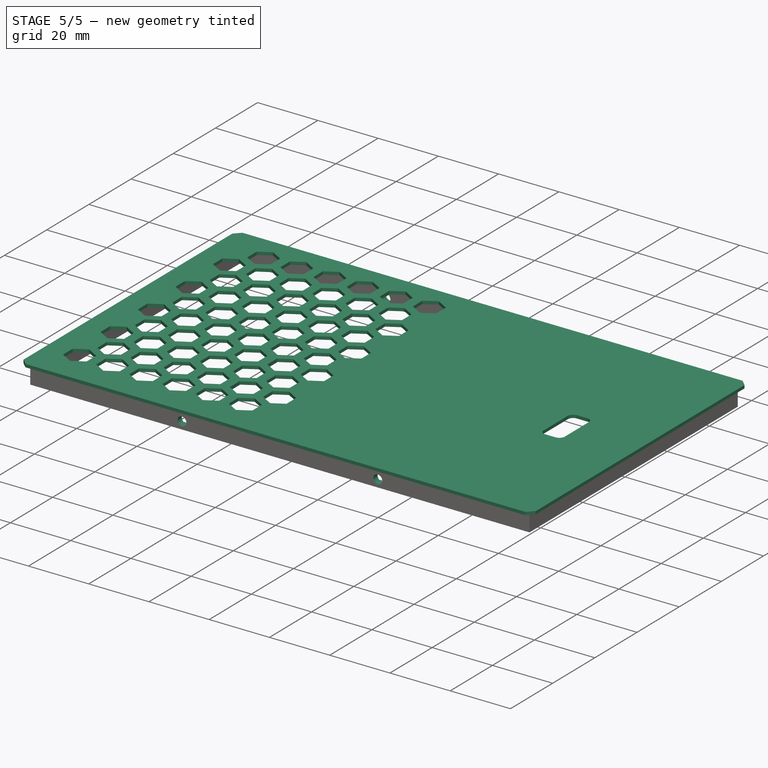
[diagram: stage 5 of 5 — iso view after this stage's code; geometry added in this stage tinted green]
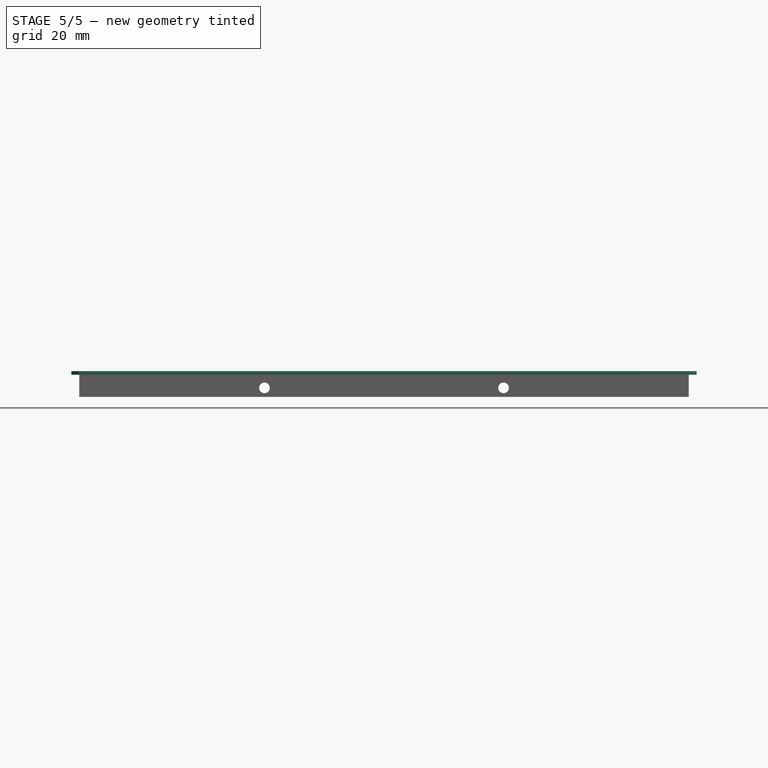
[diagram: stage 5 of 5 — front view after this stage's code; geometry added in this stage tinted green]
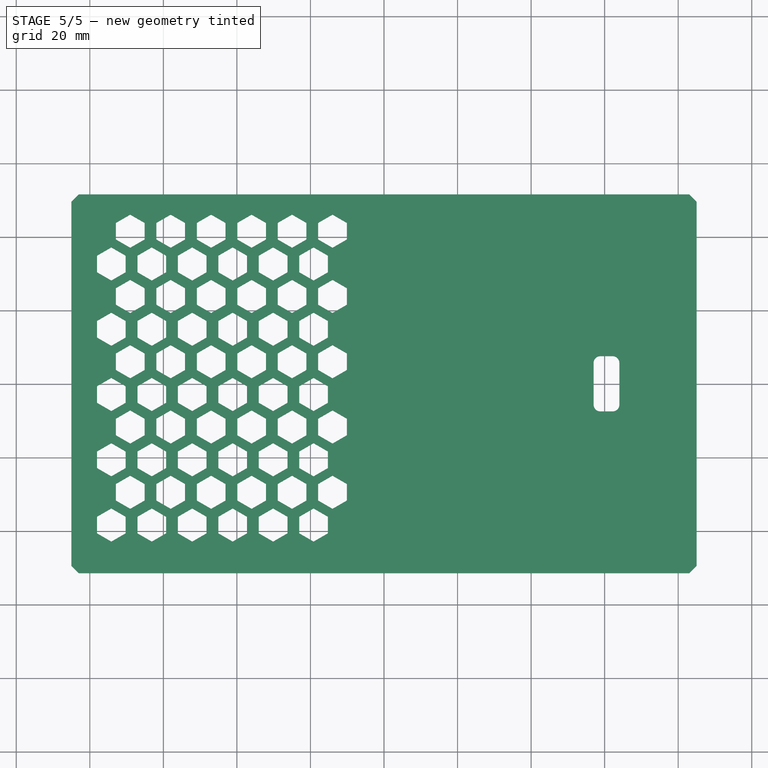
[diagram: stage 5 of 5 — top view after this stage's code; geometry added in this stage tinted green]
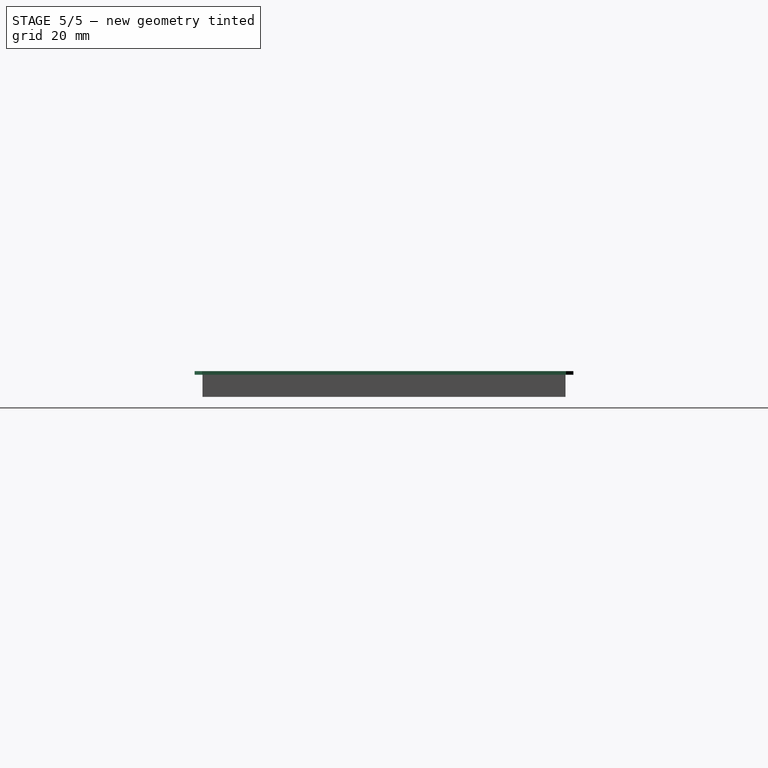
[diagram: stage 5 of 5 — right view after this stage's code; geometry added in this stage tinted green]
FEATURE [Sketcher::SketchObject] Sketch027
  ArcFitTolerance = 1e-06
  AttachmentSupport = -> [Pad009]
  ExternalGeometry = -> [ShapeBinder]
  FullyConstrained = true
  MakeInternals = false
  MapMode = 5
  Placement = pos=(0,0,45) rot=(0,0,1;0rad)
  sketch-geometry (8):
    g0: LineSegment StartX=-83 StartY=-51.5 StartZ=0 EndX=83 EndY=-51.5 EndZ=0
    g1: LineSegment StartX=85 StartY=-49.5 StartZ=0 EndX=85 EndY=49.5 EndZ=0
    g2: LineSegment StartX=83 StartY=51.5 StartZ=0 EndX=-83 EndY=51.5 EndZ=0
    g3: LineSegment StartX=-85 StartY=49.5 StartZ=0 EndX=-85 EndY=-49.5 EndZ=0
    g4: LineSegment StartX=-83 StartY=-51.5 StartZ=0 EndX=-85 EndY=-49.5 EndZ=0
    g5: LineSegment StartX=83 StartY=-51.5 StartZ=0 EndX=85 EndY=-49.5 EndZ=0
    g6: LineSegment StartX=83 StartY=51.5 StartZ=0 EndX=85 EndY=49.5 EndZ=0
    g7: LineSegment StartX=-85 StartY=49.5 StartZ=0 EndX=-83 EndY=51.5 EndZ=0
  constraints (16):
    c: Coincident(g0,g-3)
    c: Coincident(g1,g-3)
    c: Coincident(g1,g-4)
    c: Coincident(g2,g-4)
    c: Coincident(g2,g-5)
    c: Coincident(g3,g-5)
    c: Coincident(g4,g0)
    c: Coincident(g4,g3)
    c: Coincident(g3,g-6)
    c: Coincident(g0,g-6)
    c: Coincident(g5,g0)
    c: Coincident(g5,g1)
    c: Coincident(g6,g2)
    c: Coincident(g6,g1)
    c: Coincident(g7,g3)
    c: Coincident(g7,g2)
FEATURE [PartDesign::Pad] Pad010
  BaseFeature = -> Pad009
  Direction = (0,0,1)
  Length = 1
  Length2 = 10
  Profile = -> Sketch027
  ReferenceAxis = -> Sketch027 [N_Axis]
  Refine = true
  Suppressed = false
  Type = 0
FEATURE [Sketcher::SketchObject] Sketch028
  ArcFitTolerance = 1e-06
  AttachmentSupport = -> [Pad010]
  ExternalGeometry = -> [ShapeBinder]
  FullyConstrained = true
  MakeInternals = false
  MapMode = 5
  Placement = pos=(0,49.3586,0) rot=(0,0.707107,0.707107;3.14159rad)
  sketch-geometry (2):
    g0: Circle CenterX=-32.5 CenterY=41.45 CenterZ=0 NormalX=0 NormalY=0 NormalZ=1 AngleXU=0 Radius=1.45
    g1: Circle CenterX=32.5 CenterY=41.45 CenterZ=0 NormalX=0 NormalY=0 NormalZ=1 AngleXU=0 Radius=1.45
  constraints (4):
    c: Coincident(g0,g-3)
    c: Coincident(g1,g-4)
    c: Equal(g1,g0)
    c: Diameter(g0) = 2.9
FEATURE [PartDesign::Pocket] Pocket016
  BaseFeature = -> Pad010
  Direction = (0,-1,2e-16)
  Length = 5
  Length2 = 5
  Profile = -> Sketch028
  ReferenceAxis = -> Sketch028 [N_Axis]
  Refine = true
  Suppressed = false
  Type = 1
FEATURE [Sketcher::SketchObject] Sketch029
  ArcFitTolerance = 1e-06
  AttachmentSupport = -> [Pocket016]
  ExternalGeometry = -> [Pocket016]
  FullyConstrained = true
  MakeInternals = false
  MapMode = 5
  Placement = pos=(0,0,46) rot=(0,0,1;0rad)
  sketch-geometry (16):
    g0: LineSegment StartX=-70.25 StartY=30.3349 StartZ=0 EndX=-70.25 EndY=34.8349 EndZ=0
    g1: LineSegment StartX=-70.25 StartY=34.8349 StartZ=0 EndX=-74.1471 EndY=37.0849 EndZ=0
    g2: LineSegment StartX=-74.1471 StartY=37.0849 StartZ=0 EndX=-78.0442 EndY=34.8349 EndZ=0
    g3: LineSegment StartX=-78.0442 StartY=34.8349 StartZ=0 EndX=-78.0442 EndY=30.3349 EndZ=0
    g4: LineSegment StartX=-78.0442 StartY=30.3349 StartZ=0 EndX=-74.1471 EndY=28.0849 EndZ=0
    g5: LineSegment StartX=-74.1471 StartY=28.0849 StartZ=0 EndX=-70.25 EndY=30.3349 EndZ=0
    g6: Circle [constr] CenterX=-74.1471 CenterY=32.5849 CenterZ=0 NormalX=0 NormalY=0 NormalZ=1 AngleXU=0 Radius=4.5
    g7: LineSegment StartX=-69 StartY=37 StartZ=0 EndX=-65.1029 EndY=39.25 EndZ=0
    g8: LineSegment StartX=-65.1029 StartY=39.25 StartZ=0 EndX=-65.1029 EndY=43.75 EndZ=0
    g9: LineSegment StartX=-65.1029 StartY=43.75 StartZ=0 EndX=-69 EndY=46 EndZ=0
    g10: LineSegment StartX=-69 StartY=46 StartZ=0 EndX=-72.8971 EndY=43.75 EndZ=0
    g11: LineSegment StartX=-72.8971 StartY=43.75 StartZ=0 EndX=-72.8971 EndY=39.25 EndZ=0
    g12: LineSegment StartX=-72.8971 StartY=39.25 StartZ=0 EndX=-69 EndY=37 EndZ=0
    g13: Circle [constr] CenterX=-69 CenterY=41.5 CenterZ=0 NormalX=0 NormalY=0 NormalZ=1 AngleXU=0 Radius=4.5
    g14: LineSegment [constr] StartX=-74.1471 StartY=32.5849 StartZ=0 EndX=-69 EndY=41.5 EndZ=0
    g15: GeomPoint [constr] X=-72.1986 Y=35.9599 Z=0
  constraints (37):
    c: Coincident(g0,g1)
    c: Coincident(g1,g2)
    c: Coincident(g2,g3)
    c: Coincident(g3,g4)
    c: Coincident(g4,g5)
    c: Coincident(g5,g0)
    c: Equal(g0, g1-g5) x5
    c: PointOnObject(g0,g6)
    c: PointOnObject(g1,g6)
    c: PointOnObject(g2,g6)
    c: PointOnObject(g3,g6)
    c: PointOnObject(g4,g6)
    c: PointOnObject(g5,g6)
    c: Vertical(g0)
    c: Coincident(g7,g8)
    c: Coincident(g8,g9)
    c: Coincident(g9,g10)
    c: Coincident(g10,g11)
    c: Coincident(g11,g12)
    c: Coincident(g12,g7)
    c: Equal(g7, g8-g12) x5
    c: PointOnObject(g7,g13)
    c: PointOnObject(g8,g13)
    c: PointOnObject(g9,g13)
    c: PointOnObject(g10,g13)
    c: PointOnObject(g11,g13)
    c: PointOnObject(g12,g13)
    c: Vertical(g8)
    c: Equal(g1,g12)
    c: Distance(g12,g12) = 4.5
    c: DistanceY(g13,g-3) = 10
    c: DistanceX(g-3,g13) = 14
    c: Distance(g0,g7) = 2.5
    c: Coincident(g14,g6)
    c: Coincident(g14,g13)
    c: Symmetric(g1,g1,g15)
    c: PointOnObject(g15,g14)
FEATURE [PartDesign::Pocket] Pocket017
  BaseFeature = -> Pocket016
  Direction = (0,0,-1)
  Length = 5
  Length2 = 5
  Profile = -> Sketch029
  ReferenceAxis = -> Sketch029 [N_Axis]
  Refine = true
  Suppressed = false
  Type = 2
FEATURE [PartDesign::LinearPattern] LinearPattern
  Direction = -> Sketch029 [H_Axis]
  Length = 55
  Mode = 0
  Occurrences = 6
  Offset = 11
  Refine = true
  Suppressed = false
  TransformMode = 0
FEATURE [PartDesign::LinearPattern] LinearPattern001
  Direction = -> Sketch029 [V_Axis]
  Length = 71
  Mode = 0
  Occurrences = 5
  Offset = 17.75
  Refine = true
  Reversed = true
  Suppressed = false
  TransformMode = 0
FEATURE [PartDesign::MultiTransform] MultiTransform
  BaseFeature = -> Pocket017
  Originals = -> [Pocket017]
  Refine = true
  Suppressed = false
  TransformMode = 0
  Transformations = -> [LinearPattern,LinearPattern001]
FEATURE [Sketcher::SketchObject] Sketch030
  ArcFitTolerance = 1e-06
  AttachmentSupport = -> [MultiTransform]
  FullyConstrained = true
  MakeInternals = false
  MapMode = 5
  Placement = pos=(0,0,46) rot=(0,0,1;0rad)
  sketch-geometry (11):
    g0: LineSegment StartX=57 StartY=5.7 StartZ=0 EndX=57 EndY=-5.7 EndZ=0
    g1: LineSegment StartX=58.8 StartY=-7.5 StartZ=0 EndX=62.2 EndY=-7.5 EndZ=0
    g2: LineSegment StartX=64 StartY=-5.7 StartZ=0 EndX=64 EndY=5.7 EndZ=0
    g3: LineSegment StartX=62.2 StartY=7.5 StartZ=0 EndX=58.8 EndY=7.5 EndZ=0
    g4: ArcOfCircle CenterX=58.8 CenterY=5.7 CenterZ=0 NormalX=0 NormalY=0 NormalZ=1 AngleXU=0 Radius=1.8 StartAngle=1.5708 EndAngle=3.14159
    g5: ArcOfCircle CenterX=58.8 CenterY=-5.7 CenterZ=0 NormalX=0 NormalY=0 NormalZ=1 AngleXU=0 Radius=1.8 StartAngle=3.14159 EndAngle=4.71239
    g6: ArcOfCircle CenterX=62.2 CenterY=-5.7 CenterZ=0 NormalX=0 NormalY=0 NormalZ=1 AngleXU=0 Radius=1.8 StartAngle=4.71239 EndAngle=6.28319
    g7: ArcOfCircle CenterX=62.2 CenterY=5.7 CenterZ=0 NormalX=0 NormalY=0 NormalZ=1 AngleXU=0 Radius=1.8 StartAngle=2e-16 EndAngle=1.5708
    g8: GeomPoint [constr] X=57 Y=7.5 Z=0
    g9: GeomPoint [constr] X=64 Y=-7.5 Z=0
    g10: GeomPoint X=64 Y=0 Z=0
  constraints (25):
    c: Tangent(g0,g4) = -1.5708
    c: Tangent(g0,g5) = -1.5708
    c: Tangent(g1,g5) = -1.5708
    c: Tangent(g1,g6) = -1.5708
    c: Tangent(g2,g6) = -1.5708
    c: Tangent(g2,g7) = -1.5708
    c: Tangent(g3,g7) = -1.5708
    c: Tangent(g3,g4) = -1.5708
    c: Vertical(g0)
    c: Vertical(g2)
    c: Horizontal(g1)
    c: Horizontal(g3)
    c: Equal(g4,g5)
    c: Equal(g5,g6)
    c: Equal(g6,g7)
    c: PointOnObject(g8,g0)
    c: PointOnObject(g8,g3)
    c: PointOnObject(g9,g1)
    c: PointOnObject(g9,g2)
    c: DistanceY(g1,g3) = 15
    c: DistanceX(g0,g2) = 7
    c: Radius(g6) = 1.8
    c: Symmetric(g2,g2,g10)
    c: PointOnObject(g10,g-1)
    c: DistanceX(g-1,g10) = 64
FEATURE [PartDesign::Pocket] Pocket018
  BaseFeature = -> MultiTransform
  Direction = (0,0,-1)
  Length = 5
  Length2 = 5
  Profile = -> Sketch030
  ReferenceAxis = -> Sketch030 [N_Axis]
  Refine = true
  Suppressed = false
  Type = 2
FEATURE [PartDesign::Body] Body002
  AllowCompound = false
  Group = -> [ShapeBinder,Sketch026,Pad009,Sketch027,Pad010,Sketch028,Pocket016,Sketch029,Pocket017,MultiTransform,LinearPattern,LinearPattern001,Sketch030,Pocket018]
  Origin = -> Origin003
  Placement = pos=(0,0,26) rot=(0,0,1;0rad)
  Tip = -> Pocket018
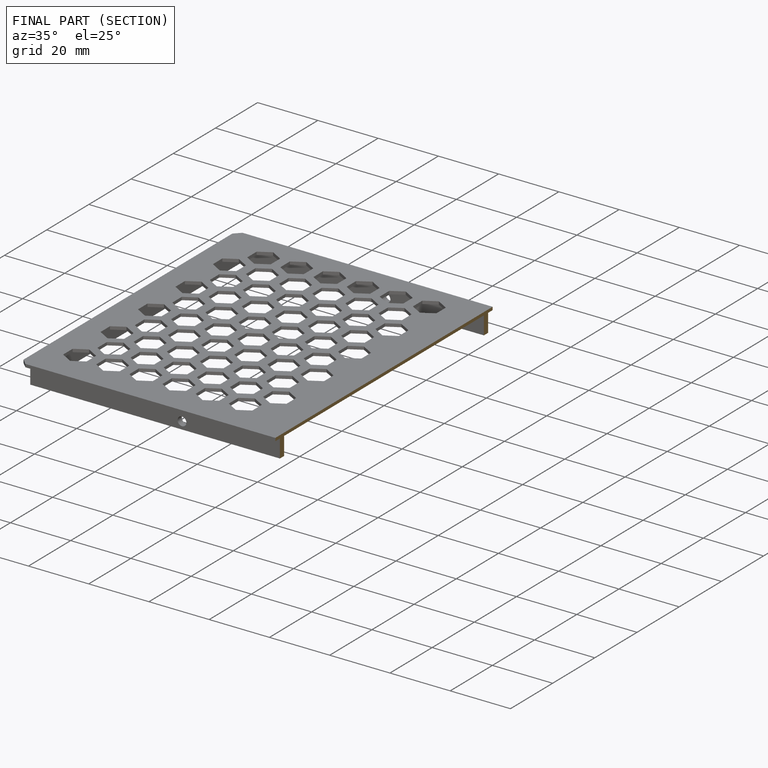
[diagram: finished part — half-section view (interior)]
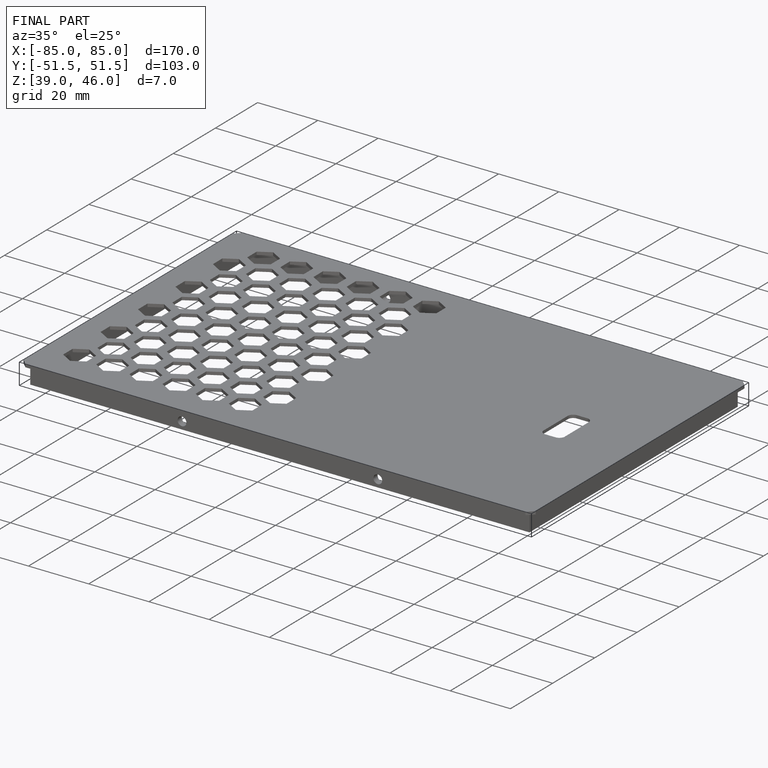
[diagram: finished part — iso view with bounding-box wireframe]
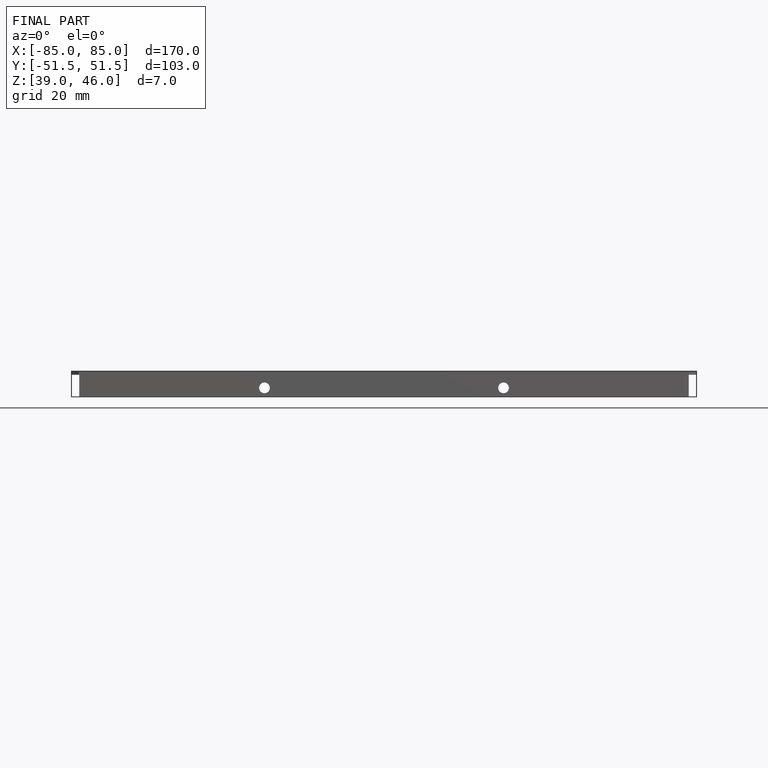
[diagram: finished part — front view with bounding-box wireframe]
